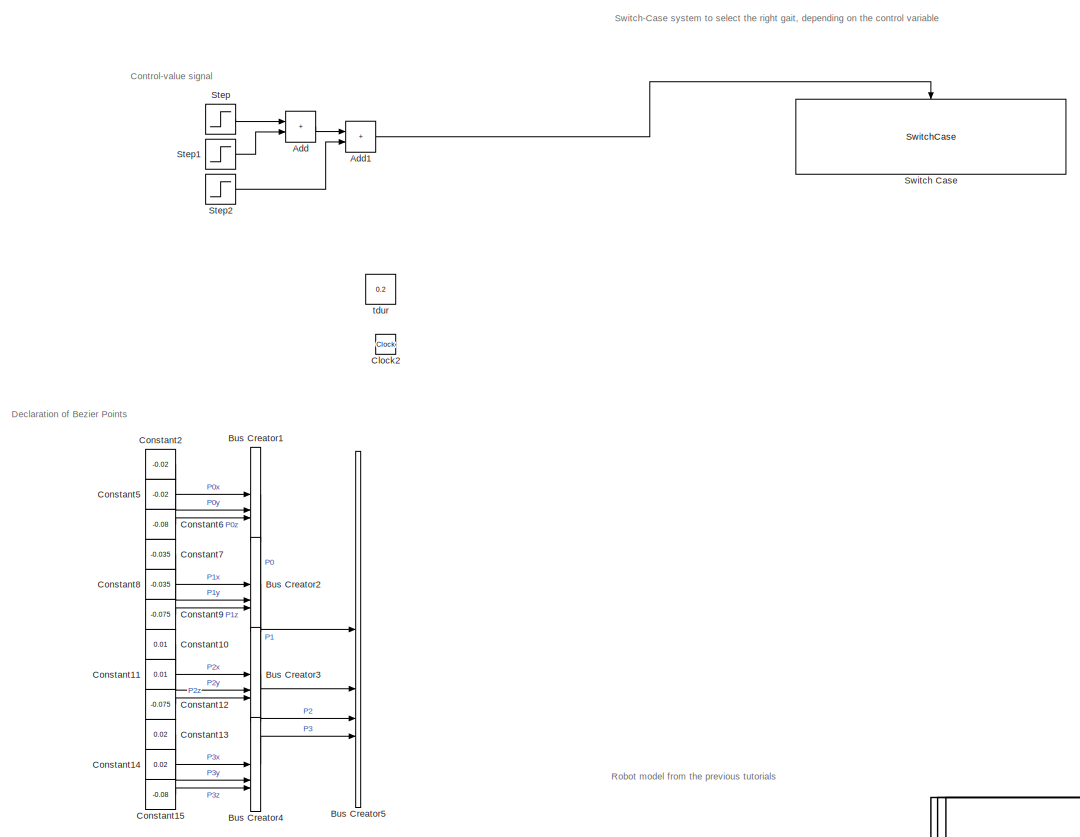
[diagram: root canvas - part 1/3, top left region]
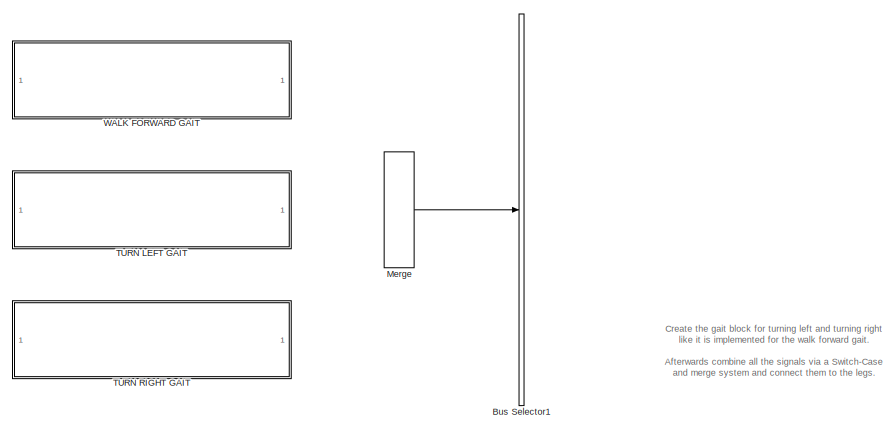
[diagram: root canvas - part 2/3, top right region]
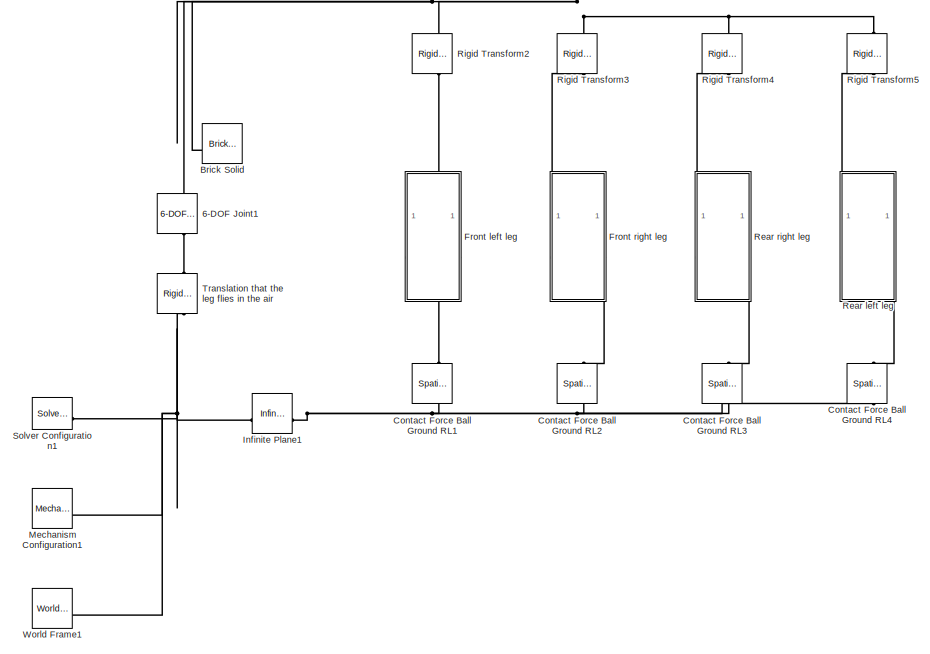
[diagram: root canvas - part 3/3, bottom center region]
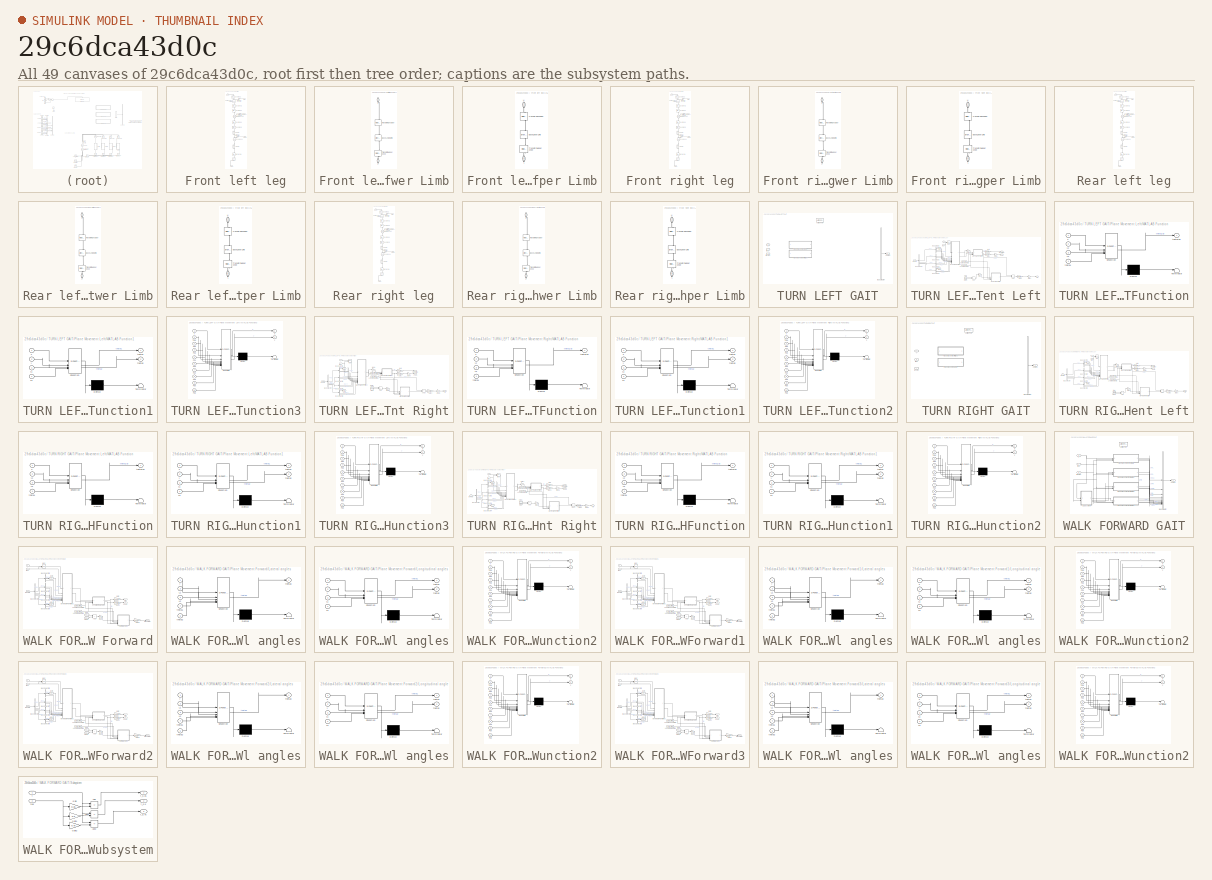
[diagram: thumbnail index - all 49 canvases of the model, root first then tree order]
MODEL slx_29c6dca43d0c
KIND model
CONFIG AbsTol = 1e-3
CONFIG EnableMultiTasking = on
CONFIG FixedStep = auto
CONFIG MaxStep = auto
CONFIG MinStep = auto
CONFIG RelTol = 1e-3
CONFIG SampleTimeConstraint = Unconstrained
CONFIG SolverName = ode23t
CONFIG StartTime = 0.0
CONFIG StopTime = 4
WORKSPACE source: mxarray member
WORKSPACE A = 0.4
WORKSPACE Critical_Velocity = 0.01
WORKSPACE Damping_Factor = 1000
WORKSPACE Dynamic_Friction = 0.5
WORKSPACE Heigth_brick: Simulink.Parameter (value not decoded)
WORKSPACE Heigth_ramp: Simulink.Parameter (value not decoded)
WORKSPACE Length_brick: Simulink.Parameter (value not decoded)
WORKSPACE Length_ramp: Simulink.Parameter (value not decoded)
WORKSPACE Length_torso: Simulink.Parameter (value not decoded)
WORKSPACE Lower_limbs: Simulink.Parameter (value not decoded)
WORKSPACE Static_Friction = 0.7
WORKSPACE Stiffnesscoefficient = 10000
WORKSPACE Transition_Region_Width = 0.02
WORKSPACE Upper_limbs: Simulink.Parameter (value not decoded)
WORKSPACE Width_brick: Simulink.Parameter (value not decoded)
WORKSPACE Width_ramp: Simulink.Parameter (value not decoded)
WORKSPACE Width_torso: Simulink.Parameter (value not decoded)
WORKSPACE f = 1.5
WORKSPACE max_Joint_change = 100
WORKSPACE r_foot: Simulink.Parameter (value not decoded)
WORKSPACE sampleTime: Simulink.Parameter (value not decoded)
WORKSPACE t_leg: Simulink.Parameter (value not decoded)
WORKSPACE theta: Simulink.Parameter (value not decoded)
WORKSPACE transferFunVal: Simulink.Parameter (value not decoded)
BLOCK [Reference] 6-DOF Joint1  REF=sm_lib/Joints/6-DOF Joint
  NameLocation = right
  SourceBlock = sm_lib/Joints/6-DOF Joint
  SourceType = 6-DOF Joint
BLOCK [Sum] Add
  IconShape = rectangular
BLOCK [Sum] Add1
  IconShape = rectangular
BLOCK [Reference] Brick Solid  REF=sm_lib/Body Elements/Brick Solid
  NameLocation = top
  SourceBlock = sm_lib/Body Elements/Brick Solid
  SourceType = Brick Solid
BLOCK [BusCreator] Bus Creator1
  DisplayOption = bar
  InheritFromInputs = on
  Inputs = 3
BLOCK [BusCreator] Bus Creator2
  DisplayOption = bar
  InheritFromInputs = on
  Inputs = 3
BLOCK [BusCreator] Bus Creator3
  DisplayOption = bar
  InheritFromInputs = on
  Inputs = 3
BLOCK [BusCreator] Bus Creator4
  DisplayOption = bar
  InheritFromInputs = on
  Inputs = 3
BLOCK [BusCreator] Bus Creator5
  DisplayOption = bar
  InheritFromInputs = on
  Inputs = 4
BLOCK [BusSelector] Bus Selector1
  OutputSignals = sFL,kFL,sFLs,sFR,kFR,sFRs,sBL,kBL,sBLs,sBR,kBR,sBRs
BLOCK [Clock] Clock2
BLOCK [Constant] Constant10
  Value = 0.01
BLOCK [Constant] Constant11
  Value = 0.01
BLOCK [Constant] Constant12
  Value = -0.075
BLOCK [Constant] Constant13
  Value = 0.02
BLOCK [Constant] Constant14
  Value = 0.02
BLOCK [Constant] Constant15
  Value = -0.08
BLOCK [Constant] Constant2
  Value = -0.02
BLOCK [Constant] Constant5
  Value = -0.02
BLOCK [Constant] Constant6
  Value = -0.08
BLOCK [Constant] Constant7
  Value = -0.035
BLOCK [Constant] Constant8
  Value = -0.035
BLOCK [Constant] Constant9
  Value = -0.075
BLOCK [Reference] Contact Force Ball Ground RL1  REF=sm_lib/Forces and
Torques/Spatial
Contact Force
  NameLocation = left
  SourceBlock = sm_lib/Forces and\nTorques/Spatial\nContact Force
  SourceType = Spatial\nContact Force
BLOCK [Reference] Contact Force Ball Ground RL2  REF=sm_lib/Forces and
Torques/Spatial
Contact Force
  NameLocation = left
  SourceBlock = sm_lib/Forces and\nTorques/Spatial\nContact Force
  SourceType = Spatial\nContact Force
BLOCK [Reference] Contact Force Ball Ground RL3  REF=sm_lib/Forces and
Torques/Spatial
Contact Force
  NameLocation = left
  SourceBlock = sm_lib/Forces and\nTorques/Spatial\nContact Force
  SourceType = Spatial\nContact Force
BLOCK [Reference] Contact Force Ball Ground RL4  REF=sm_lib/Forces and
Torques/Spatial
Contact Force
  NameLocation = left
  SourceBlock = sm_lib/Forces and\nTorques/Spatial\nContact Force
  SourceType = Spatial\nContact Force
BLOCK [SubSystem] Front left leg
  PortSchema = {"entries":[{"content":{"sides":[{"content":{},"type":"ConnectorPlacement.EquallySpacedRectSide","uuid":"4058ee2b-9772-4aa9-ad2c-dc188ae6aecd"},{"content":{"connectorIds":["In1","In2","In3"],"side":"RIGHT"},"type":"ConnectorPlacement.EquallySpacedRectSide","uuid":"c8f5ac60-63ea-4dfe-ad35-3ef8c1bdb1d6"},{"content":{"connectorIds":["LConn1"],"side":"TOP"},"type":"ConnectorPlacement.EquallySpacedRect...<+389ch>  <repeated x4 — deduplicated; at blocks: Front left leg, Front right leg, Rear left leg, Rear right leg>
BLOCK [Inport] Front left leg/<Hip>
  NameLocation = top
BLOCK [Inport] Front left leg/<Knee>
  NameLocation = top
  Port = 3
BLOCK [PMIOPort] Front left leg/Conn1
  Side = Left
BLOCK [PMIOPort] Front left leg/Conn2
  Port = 2
  Side = Right
BLOCK [Reference] Front left leg/Foot  REF=sm_lib/Body Elements/Spherical Solid
  NameLocation = right
  SourceBlock = sm_lib/Body Elements/Spherical Solid
  SourceType = Spherical Solid
BLOCK [SubSystem] Front left leg/Lower Limb
  NameLocation = left
BLOCK [Reference] Front left leg/Lower Limb/BaseLowerLimb  REF=sm_lib/Body Elements/Brick Solid
  NameLocation = left
  SourceBlock = sm_lib/Body Elements/Brick Solid
  SourceType = Brick Solid
BLOCK [PMIOPort] Front left leg/Lower Limb/L
  NameLocation = left
  Port = 2
  Side = Right
BLOCK [Reference] Front left leg/Lower Limb/Transform Shoulder  REF=sm_lib/Frames and
Transforms/Rigid
Transform
  NameLocation = left
  SourceBlock = sm_lib/Frames and\nTransforms/Rigid\nTransform
  SourceType = Rigid\nTransform
BLOCK [Reference] Front left leg/Lower Limb/Transform Upper Knee  REF=sm_lib/Frames and
Transforms/Rigid
Transform
  NameLocation = left
  SourceBlock = sm_lib/Frames and\nTransforms/Rigid\nTransform
  SourceType = Rigid\nTransform
BLOCK [PMIOPort] Front left leg/Lower Limb/U
  NameLocation = left
  Side = Left
BLOCK [Reference] Front left leg/Revolute Knee1  REF=sm_lib/Joints/Revolute Joint
  NameLocation = left
  SourceBlock = sm_lib/Joints/Revolute Joint
  SourceType = Revolute Joint
BLOCK [Reference] Front left leg/Revolute Shoulder Forward  REF=sm_lib/Joints/Revolute Joint
  NameLocation = left
  SourceBlock = sm_lib/Joints/Revolute Joint
  SourceType = Revolute Joint
BLOCK [Reference] Front left leg/Revolute Shoulder Sideways  REF=sm_lib/Joints/Revolute Joint
  NameLocation = left
  SourceBlock = sm_lib/Joints/Revolute Joint
  SourceType = Revolute Joint
BLOCK [Reference] Front left leg/Rigid Transform4  REF=sm_lib/Frames and
Transforms/Rigid
Transform
  NameLocation = left
  SourceBlock = sm_lib/Frames and\nTransforms/Rigid\nTransform
  SourceType = Rigid\nTransform
BLOCK [Inport] Front left leg/Sideways
  NameLocation = top
  Port = 2
BLOCK [Reference] Front left leg/Simulink-PS Converter  REF=nesl_utility/Simulink-PS
Converter
  NameLocation = top
  SourceBlock = nesl_utility/Simulink-PS\nConverter
  SourceType = Simulink-PS\nConverter
BLOCK [Reference] Front left leg/Simulink-PS Converter1  REF=nesl_utility/Simulink-PS
Converter
  NameLocation = top
  SourceBlock = nesl_utility/Simulink-PS\nConverter
  SourceType = Simulink-PS\nConverter
BLOCK [Reference] Front left leg/Simulink-PS Converter2  REF=nesl_utility/Simulink-PS
Converter
  NameLocation = top
  SourceBlock = nesl_utility/Simulink-PS\nConverter
  SourceType = Simulink-PS\nConverter
BLOCK [Reference] Front left leg/Transform Pivot1  REF=sm_lib/Frames and
Transforms/Rigid
Transform
  NameLocation = left
  SourceBlock = sm_lib/Frames and\nTransforms/Rigid\nTransform
  SourceType = Rigid\nTransform
BLOCK [Reference] Front left leg/Transform Pivot2  REF=sm_lib/Frames and
Transforms/Rigid
Transform
  NameLocation = left
  SourceBlock = sm_lib/Frames and\nTransforms/Rigid\nTransform
  SourceType = Rigid\nTransform
BLOCK [Reference] Front left leg/Transform Pivot3  REF=sm_lib/Frames and
Transforms/Rigid
Transform
  NameLocation = left
  SourceBlock = sm_lib/Frames and\nTransforms/Rigid\nTransform
  SourceType = Rigid\nTransform
BLOCK [Reference] Front left leg/Transform Pivot4  REF=sm_lib/Frames and
Transforms/Rigid
Transform
  NameLocation = left
  SourceBlock = sm_lib/Frames and\nTransforms/Rigid\nTransform
  SourceType = Rigid\nTransform
BLOCK [Reference] Front left leg/Transform Pivot5  REF=sm_lib/Frames and
Transforms/Rigid
Transform
  NameLocation = left
  SourceBlock = sm_lib/Frames and\nTransforms/Rigid\nTransform
  SourceType = Rigid\nTransform
BLOCK [SubSystem] Front left leg/Upper Limb
  NameLocation = left
BLOCK [Reference] Front left leg/Upper Limb/BaseUpperLimb  REF=sm_lib/Body Elements/Brick Solid
  NameLocation = left
  SourceBlock = sm_lib/Body Elements/Brick Solid
  SourceType = Brick Solid
BLOCK [PMIOPort] Front left leg/Upper Limb/L
  NameLocation = left
  Port = 2
  Side = Right
BLOCK [Reference] Front left leg/Upper Limb/Transform Shoulder  REF=sm_lib/Frames and
Transforms/Rigid
Transform
  NameLocation = left
  SourceBlock = sm_lib/Frames and\nTransforms/Rigid\nTransform
  SourceType = Rigid\nTransform
BLOCK [Reference] Front left leg/Upper Limb/Transform Upper Knee  REF=sm_lib/Frames and
Transforms/Rigid
Transform
  NameLocation = left
  SourceBlock = sm_lib/Frames and\nTransforms/Rigid\nTransform
  SourceType = Rigid\nTransform
BLOCK [PMIOPort] Front left leg/Upper Limb/U
  NameLocation = left
  Side = Left
BLOCK [SubSystem] Front right leg
BLOCK [Inport] Front right leg/<Hip>
  NameLocation = top
BLOCK [Inport] Front right leg/<Knee>
  NameLocation = top
  Port = 3
BLOCK [PMIOPort] Front right leg/Conn1
  Side = Left
BLOCK [PMIOPort] Front right leg/Conn2
  Port = 2
  Side = Right
BLOCK [Reference] Front right leg/Foot  REF=sm_lib/Body Elements/Spherical Solid
  NameLocation = right
  SourceBlock = sm_lib/Body Elements/Spherical Solid
  SourceType = Spherical Solid
BLOCK [SubSystem] Front right leg/Lower Limb
  NameLocation = left
BLOCK [Reference] Front right leg/Lower Limb/BaseLowerLimb  REF=sm_lib/Body Elements/Brick Solid
  NameLocation = left
  SourceBlock = sm_lib/Body Elements/Brick Solid
  SourceType = Brick Solid
BLOCK [PMIOPort] Front right leg/Lower Limb/L
  NameLocation = left
  Port = 2
  Side = Right
BLOCK [Reference] Front right leg/Lower Limb/Transform Shoulder  REF=sm_lib/Frames and
Transforms/Rigid
Transform
  NameLocation = left
  SourceBlock = sm_lib/Frames and\nTransforms/Rigid\nTransform
  SourceType = Rigid\nTransform
BLOCK [Reference] Front right leg/Lower Limb/Transform Upper Knee  REF=sm_lib/Frames and
Transforms/Rigid
Transform
  NameLocation = left
  SourceBlock = sm_lib/Frames and\nTransforms/Rigid\nTransform
  SourceType = Rigid\nTransform
BLOCK [PMIOPort] Front right leg/Lower Limb/U
  NameLocation = left
  Side = Left
BLOCK [Reference] Front right leg/Revolute Knee1  REF=sm_lib/Joints/Revolute Joint
  NameLocation = left
  SourceBlock = sm_lib/Joints/Revolute Joint
  SourceType = Revolute Joint
BLOCK [Reference] Front right leg/Revolute Shoulder Forward  REF=sm_lib/Joints/Revolute Joint
  NameLocation = left
  SourceBlock = sm_lib/Joints/Revolute Joint
  SourceType = Revolute Joint
BLOCK [Reference] Front right leg/Revolute Shoulder Sideways  REF=sm_lib/Joints/Revolute Joint
  NameLocation = left
  SourceBlock = sm_lib/Joints/Revolute Joint
  SourceType = Revolute Joint
BLOCK [Reference] Front right leg/Rigid Transform4  REF=sm_lib/Frames and
Transforms/Rigid
Transform
  NameLocation = left
  SourceBlock = sm_lib/Frames and\nTransforms/Rigid\nTransform
  SourceType = Rigid\nTransform
BLOCK [Inport] Front right leg/Sideways
  NameLocation = top
  Port = 2
BLOCK [Reference] Front right leg/Simulink-PS Converter  REF=nesl_utility/Simulink-PS
Converter
  NameLocation = top
  SourceBlock = nesl_utility/Simulink-PS\nConverter
  SourceType = Simulink-PS\nConverter
BLOCK [Reference] Front right leg/Simulink-PS Converter1  REF=nesl_utility/Simulink-PS
Converter
  NameLocation = top
  SourceBlock = nesl_utility/Simulink-PS\nConverter
  SourceType = Simulink-PS\nConverter
BLOCK [Reference] Front right leg/Simulink-PS Converter2  REF=nesl_utility/Simulink-PS
Converter
  NameLocation = top
  SourceBlock = nesl_utility/Simulink-PS\nConverter
  SourceType = Simulink-PS\nConverter
BLOCK [Reference] Front right leg/Transform Pivot1  REF=sm_lib/Frames and
Transforms/Rigid
Transform
  NameLocation = left
  SourceBlock = sm_lib/Frames and\nTransforms/Rigid\nTransform
  SourceType = Rigid\nTransform
BLOCK [Reference] Front right leg/Transform Pivot2  REF=sm_lib/Frames and
Transforms/Rigid
Transform
  NameLocation = left
  SourceBlock = sm_lib/Frames and\nTransforms/Rigid\nTransform
  SourceType = Rigid\nTransform
BLOCK [Reference] Front right leg/Transform Pivot3  REF=sm_lib/Frames and
Transforms/Rigid
Transform
  NameLocation = left
  SourceBlock = sm_lib/Frames and\nTransforms/Rigid\nTransform
  SourceType = Rigid\nTransform
BLOCK [Reference] Front right leg/Transform Pivot4  REF=sm_lib/Frames and
Transforms/Rigid
Transform
  NameLocation = left
  SourceBlock = sm_lib/Frames and\nTransforms/Rigid\nTransform
  SourceType = Rigid\nTransform
BLOCK [Reference] Front right leg/Transform Pivot5  REF=sm_lib/Frames and
Transforms/Rigid
Transform
  NameLocation = left
  SourceBlock = sm_lib/Frames and\nTransforms/Rigid\nTransform
  SourceType = Rigid\nTransform
BLOCK [SubSystem] Front right leg/Upper Limb
  NameLocation = left
BLOCK [Reference] Front right leg/Upper Limb/BaseUpperLimb  REF=sm_lib/Body Elements/Brick Solid
  NameLocation = left
  SourceBlock = sm_lib/Body Elements/Brick Solid
  SourceType = Brick Solid
BLOCK [PMIOPort] Front right leg/Upper Limb/L
  NameLocation = left
  Port = 2
  Side = Right
BLOCK [Reference] Front right leg/Upper Limb/Transform Shoulder  REF=sm_lib/Frames and
Transforms/Rigid
Transform
  NameLocation = left
  SourceBlock = sm_lib/Frames and\nTransforms/Rigid\nTransform
  SourceType = Rigid\nTransform
BLOCK [Reference] Front right leg/Upper Limb/Transform Upper Knee  REF=sm_lib/Frames and
Transforms/Rigid
Transform
  NameLocation = left
  SourceBlock = sm_lib/Frames and\nTransforms/Rigid\nTransform
  SourceType = Rigid\nTransform
BLOCK [PMIOPort] Front right leg/Upper Limb/U
  NameLocation = left
  Side = Left
BLOCK [Reference] Infinite Plane1  REF=sm_lib/Curves and Surfaces/Infinite Plane
  SourceBlock = sm_lib/Curves and Surfaces/Infinite Plane
  SourceType = Infinite Plane
BLOCK [Reference] Mechanism Configuration1  REF=sm_lib/Utilities/Mechanism
Configuration
  SourceBlock = sm_lib/Utilities/Mechanism\nConfiguration
  SourceType = Mechanism\nConfiguration
BLOCK [Merge] Merge
  Inputs = 3
BLOCK [SubSystem] Rear left leg
BLOCK [Inport] Rear left leg/<Hip>
  NameLocation = top
BLOCK [Inport] Rear left leg/<Knee>
  NameLocation = top
  Port = 3
BLOCK [PMIOPort] Rear left leg/Conn1
  Side = Left
BLOCK [PMIOPort] Rear left leg/Conn2
  Port = 2
  Side = Right
BLOCK [Reference] Rear left leg/Foot  REF=sm_lib/Body Elements/Spherical Solid
  NameLocation = right
  SourceBlock = sm_lib/Body Elements/Spherical Solid
  SourceType = Spherical Solid
BLOCK [SubSystem] Rear left leg/Lower Limb
  NameLocation = left
BLOCK [Reference] Rear left leg/Lower Limb/BaseLowerLimb  REF=sm_lib/Body Elements/Brick Solid
  NameLocation = left
  SourceBlock = sm_lib/Body Elements/Brick Solid
  SourceType = Brick Solid
BLOCK [PMIOPort] Rear left leg/Lower Limb/L
  NameLocation = left
  Port = 2
  Side = Right
BLOCK [Reference] Rear left leg/Lower Limb/Transform Shoulder  REF=sm_lib/Frames and
Transforms/Rigid
Transform
  NameLocation = left
  SourceBlock = sm_lib/Frames and\nTransforms/Rigid\nTransform
  SourceType = Rigid\nTransform
BLOCK [Reference] Rear left leg/Lower Limb/Transform Upper Knee  REF=sm_lib/Frames and
Transforms/Rigid
Transform
  NameLocation = left
  SourceBlock = sm_lib/Frames and\nTransforms/Rigid\nTransform
  SourceType = Rigid\nTransform
BLOCK [PMIOPort] Rear left leg/Lower Limb/U
  NameLocation = left
  Side = Left
BLOCK [Reference] Rear left leg/Revolute Knee1  REF=sm_lib/Joints/Revolute Joint
  NameLocation = left
  SourceBlock = sm_lib/Joints/Revolute Joint
  SourceType = Revolute Joint
BLOCK [Reference] Rear left leg/Revolute Shoulder Forward  REF=sm_lib/Joints/Revolute Joint
  NameLocation = left
  SourceBlock = sm_lib/Joints/Revolute Joint
  SourceType = Revolute Joint
BLOCK [Reference] Rear left leg/Revolute Shoulder Sideways  REF=sm_lib/Joints/Revolute Joint
  NameLocation = left
  SourceBlock = sm_lib/Joints/Revolute Joint
  SourceType = Revolute Joint
BLOCK [Reference] Rear left leg/Rigid Transform4  REF=sm_lib/Frames and
Transforms/Rigid
Transform
  NameLocation = left
  SourceBlock = sm_lib/Frames and\nTransforms/Rigid\nTransform
  SourceType = Rigid\nTransform
BLOCK [Inport] Rear left leg/Sideways
  NameLocation = top
  Port = 2
BLOCK [Reference] Rear left leg/Simulink-PS Converter  REF=nesl_utility/Simulink-PS
Converter
  NameLocation = top
  SourceBlock = nesl_utility/Simulink-PS\nConverter
  SourceType = Simulink-PS\nConverter
BLOCK [Reference] Rear left leg/Simulink-PS Converter1  REF=nesl_utility/Simulink-PS
Converter
  NameLocation = top
  SourceBlock = nesl_utility/Simulink-PS\nConverter
  SourceType = Simulink-PS\nConverter
BLOCK [Reference] Rear left leg/Simulink-PS Converter2  REF=nesl_utility/Simulink-PS
Converter
  NameLocation = top
  SourceBlock = nesl_utility/Simulink-PS\nConverter
  SourceType = Simulink-PS\nConverter
BLOCK [Reference] Rear left leg/Transform Pivot1  REF=sm_lib/Frames and
Transforms/Rigid
Transform
  NameLocation = left
  SourceBlock = sm_lib/Frames and\nTransforms/Rigid\nTransform
  SourceType = Rigid\nTransform
BLOCK [Reference] Rear left leg/Transform Pivot2  REF=sm_lib/Frames and
Transforms/Rigid
Transform
  NameLocation = left
  SourceBlock = sm_lib/Frames and\nTransforms/Rigid\nTransform
  SourceType = Rigid\nTransform
BLOCK [Reference] Rear left leg/Transform Pivot3  REF=sm_lib/Frames and
Transforms/Rigid
Transform
  NameLocation = left
  SourceBlock = sm_lib/Frames and\nTransforms/Rigid\nTransform
  SourceType = Rigid\nTransform
BLOCK [Reference] Rear left leg/Transform Pivot4  REF=sm_lib/Frames and
Transforms/Rigid
Transform
  NameLocation = left
  SourceBlock = sm_lib/Frames and\nTransforms/Rigid\nTransform
  SourceType = Rigid\nTransform
BLOCK [Reference] Rear left leg/Transform Pivot5  REF=sm_lib/Frames and
Transforms/Rigid
Transform
  NameLocation = left
  SourceBlock = sm_lib/Frames and\nTransforms/Rigid\nTransform
  SourceType = Rigid\nTransform
BLOCK [SubSystem] Rear left leg/Upper Limb
  NameLocation = left
BLOCK [Reference] Rear left leg/Upper Limb/BaseUpperLimb  REF=sm_lib/Body Elements/Brick Solid
  NameLocation = left
  SourceBlock = sm_lib/Body Elements/Brick Solid
  SourceType = Brick Solid
BLOCK [PMIOPort] Rear left leg/Upper Limb/L
  NameLocation = left
  Port = 2
  Side = Right
BLOCK [Reference] Rear left leg/Upper Limb/Transform Shoulder  REF=sm_lib/Frames and
Transforms/Rigid
Transform
  NameLocation = left
  SourceBlock = sm_lib/Frames and\nTransforms/Rigid\nTransform
  SourceType = Rigid\nTransform
BLOCK [Reference] Rear left leg/Upper Limb/Transform Upper Knee  REF=sm_lib/Frames and
Transforms/Rigid
Transform
  NameLocation = left
  SourceBlock = sm_lib/Frames and\nTransforms/Rigid\nTransform
  SourceType = Rigid\nTransform
BLOCK [PMIOPort] Rear left leg/Upper Limb/U
  NameLocation = left
  Side = Left
BLOCK [SubSystem] Rear right leg
BLOCK [Inport] Rear right leg/<Hip>
  NameLocation = top
BLOCK [Inport] Rear right leg/<Knee>
  NameLocation = top
  Port = 3
BLOCK [PMIOPort] Rear right leg/Conn1
  Side = Left
BLOCK [PMIOPort] Rear right leg/Conn2
  Port = 2
  Side = Right
BLOCK [Reference] Rear right leg/Foot  REF=sm_lib/Body Elements/Spherical Solid
  NameLocation = right
  SourceBlock = sm_lib/Body Elements/Spherical Solid
  SourceType = Spherical Solid
BLOCK [SubSystem] Rear right leg/Lower Limb
  NameLocation = left
BLOCK [Reference] Rear right leg/Lower Limb/BaseLowerLimb  REF=sm_lib/Body Elements/Brick Solid
  NameLocation = left
  SourceBlock = sm_lib/Body Elements/Brick Solid
  SourceType = Brick Solid
BLOCK [PMIOPort] Rear right leg/Lower Limb/L
  NameLocation = left
  Port = 2
  Side = Right
BLOCK [Reference] Rear right leg/Lower Limb/Transform Shoulder  REF=sm_lib/Frames and
Transforms/Rigid
Transform
  NameLocation = left
  SourceBlock = sm_lib/Frames and\nTransforms/Rigid\nTransform
  SourceType = Rigid\nTransform
BLOCK [Reference] Rear right leg/Lower Limb/Transform Upper Knee  REF=sm_lib/Frames and
Transforms/Rigid
Transform
  NameLocation = left
  SourceBlock = sm_lib/Frames and\nTransforms/Rigid\nTransform
  SourceType = Rigid\nTransform
BLOCK [PMIOPort] Rear right leg/Lower Limb/U
  NameLocation = left
  Side = Left
BLOCK [Reference] Rear right leg/Revolute Knee1  REF=sm_lib/Joints/Revolute Joint
  NameLocation = left
  SourceBlock = sm_lib/Joints/Revolute Joint
  SourceType = Revolute Joint
BLOCK [Reference] Rear right leg/Revolute Shoulder Forward  REF=sm_lib/Joints/Revolute Joint
  NameLocation = left
  SourceBlock = sm_lib/Joints/Revolute Joint
  SourceType = Revolute Joint
BLOCK [Reference] Rear right leg/Revolute Shoulder Sideways  REF=sm_lib/Joints/Revolute Joint
  NameLocation = left
  SourceBlock = sm_lib/Joints/Revolute Joint
  SourceType = Revolute Joint
BLOCK [Reference] Rear right leg/Rigid Transform4  REF=sm_lib/Frames and
Transforms/Rigid
Transform
  NameLocation = left
  SourceBlock = sm_lib/Frames and\nTransforms/Rigid\nTransform
  SourceType = Rigid\nTransform
BLOCK [Inport] Rear right leg/Sideways
  NameLocation = top
  Port = 2
BLOCK [Reference] Rear right leg/Simulink-PS Converter  REF=nesl_utility/Simulink-PS
Converter
  NameLocation = top
  SourceBlock = nesl_utility/Simulink-PS\nConverter
  SourceType = Simulink-PS\nConverter
BLOCK [Reference] Rear right leg/Simulink-PS Converter1  REF=nesl_utility/Simulink-PS
Converter
  NameLocation = top
  SourceBlock = nesl_utility/Simulink-PS\nConverter
  SourceType = Simulink-PS\nConverter
BLOCK [Reference] Rear right leg/Simulink-PS Converter2  REF=nesl_utility/Simulink-PS
Converter
  NameLocation = top
  SourceBlock = nesl_utility/Simulink-PS\nConverter
  SourceType = Simulink-PS\nConverter
BLOCK [Reference] Rear right leg/Transform Pivot1  REF=sm_lib/Frames and
Transforms/Rigid
Transform
  NameLocation = left
  SourceBlock = sm_lib/Frames and\nTransforms/Rigid\nTransform
  SourceType = Rigid\nTransform
BLOCK [Reference] Rear right leg/Transform Pivot2  REF=sm_lib/Frames and
Transforms/Rigid
Transform
  NameLocation = left
  SourceBlock = sm_lib/Frames and\nTransforms/Rigid\nTransform
  SourceType = Rigid\nTransform
BLOCK [Reference] Rear right leg/Transform Pivot3  REF=sm_lib/Frames and
Transforms/Rigid
Transform
  NameLocation = left
  SourceBlock = sm_lib/Frames and\nTransforms/Rigid\nTransform
  SourceType = Rigid\nTransform
BLOCK [Reference] Rear right leg/Transform Pivot4  REF=sm_lib/Frames and
Transforms/Rigid
Transform
  NameLocation = left
  SourceBlock = sm_lib/Frames and\nTransforms/Rigid\nTransform
  SourceType = Rigid\nTransform
BLOCK [Reference] Rear right leg/Transform Pivot5  REF=sm_lib/Frames and
Transforms/Rigid
Transform
  NameLocation = left
  SourceBlock = sm_lib/Frames and\nTransforms/Rigid\nTransform
  SourceType = Rigid\nTransform
BLOCK [SubSystem] Rear right leg/Upper Limb
  NameLocation = left
BLOCK [Reference] Rear right leg/Upper Limb/BaseUpperLimb  REF=sm_lib/Body Elements/Brick Solid
  NameLocation = left
  SourceBlock = sm_lib/Body Elements/Brick Solid
  SourceType = Brick Solid
BLOCK [PMIOPort] Rear right leg/Upper Limb/L
  NameLocation = left
  Port = 2
  Side = Right
BLOCK [Reference] Rear right leg/Upper Limb/Transform Shoulder  REF=sm_lib/Frames and
Transforms/Rigid
Transform
  NameLocation = left
  SourceBlock = sm_lib/Frames and\nTransforms/Rigid\nTransform
  SourceType = Rigid\nTransform
BLOCK [Reference] Rear right leg/Upper Limb/Transform Upper Knee  REF=sm_lib/Frames and
Transforms/Rigid
Transform
  NameLocation = left
  SourceBlock = sm_lib/Frames and\nTransforms/Rigid\nTransform
  SourceType = Rigid\nTransform
BLOCK [PMIOPort] Rear right leg/Upper Limb/U
  NameLocation = left
  Side = Left
BLOCK [Reference] Rigid Transform2  REF=sm_lib/Frames and
Transforms/Rigid
Transform
  NameLocation = left
  SourceBlock = sm_lib/Frames and\nTransforms/Rigid\nTransform
  SourceType = Rigid\nTransform
BLOCK [Reference] Rigid Transform3  REF=sm_lib/Frames and
Transforms/Rigid
Transform
  NameLocation = left
  SourceBlock = sm_lib/Frames and\nTransforms/Rigid\nTransform
  SourceType = Rigid\nTransform
BLOCK [Reference] Rigid Transform4  REF=sm_lib/Frames and
Transforms/Rigid
Transform
  NameLocation = left
  SourceBlock = sm_lib/Frames and\nTransforms/Rigid\nTransform
  SourceType = Rigid\nTransform
BLOCK [Reference] Rigid Transform5  REF=sm_lib/Frames and
Transforms/Rigid
Transform
  NameLocation = left
  SourceBlock = sm_lib/Frames and\nTransforms/Rigid\nTransform
  SourceType = Rigid\nTransform
BLOCK [Reference] Solver Configuration1  REF=nesl_utility/Solver
Configuration
  SourceBlock = nesl_utility/Solver\nConfiguration
  SourceType = Solver\nConfiguration
BLOCK [Step] Step
  SampleTime = 0
BLOCK [Step] Step1
  SampleTime = 0
  Time = 2
BLOCK [Step] Step2
  SampleTime = 0
  Time = 3
BLOCK [SwitchCase] Switch Case
  CaseConditions = {1,2,3}
  NameLocation = left
  ShowDefaultCase = off
BLOCK [SubSystem] TURN LEFT GAIT
BLOCK [ActionPort] TURN LEFT GAIT/Action Port
  ActionPortLabel = case [ 2 ]:
BLOCK [Outport] TURN LEFT GAIT/Angles
BLOCK [Inport] TURN LEFT GAIT/BPoint
  Port = 3
BLOCK [BusCreator] TURN LEFT GAIT/Bus Creator
  DisplayOption = bar
  InheritFromInputs = on
  Inputs = 12
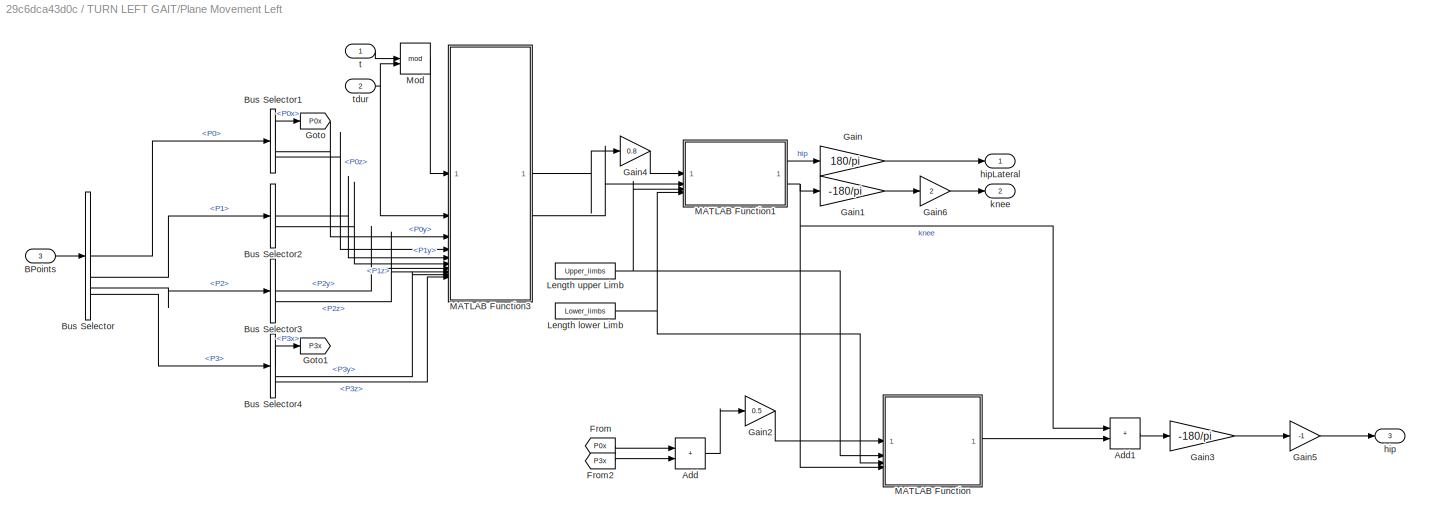
BLOCK [SubSystem] TURN LEFT GAIT/Plane Movement Left
BLOCK [Sum] TURN LEFT GAIT/Plane Movement Left/Add
  IconShape = rectangular
BLOCK [Sum] TURN LEFT GAIT/Plane Movement Left/Add1
  IconShape = rectangular
BLOCK [Inport] TURN LEFT GAIT/Plane Movement Left/BPoints
  Port = 3
BLOCK [BusSelector] TURN LEFT GAIT/Plane Movement Left/Bus Selector
  OutputSignals = P0,P1,P2,P3
BLOCK [BusSelector] TURN LEFT GAIT/Plane Movement Left/Bus Selector1
  OutputSignals = P0x,P0y,P0z
BLOCK [BusSelector] TURN LEFT GAIT/Plane Movement Left/Bus Selector2
  OutputSignals = P1y,P1z
BLOCK [BusSelector] TURN LEFT GAIT/Plane Movement Left/Bus Selector3
  OutputSignals = P2y,P2z
BLOCK [BusSelector] TURN LEFT GAIT/Plane Movement Left/Bus Selector4
  OutputSignals = P3x,P3y,P3z
BLOCK [From] TURN LEFT GAIT/Plane Movement Left/From
  GotoTag = P0x
BLOCK [From] TURN LEFT GAIT/Plane Movement Left/From2
  GotoTag = P3x
BLOCK [Gain] TURN LEFT GAIT/Plane Movement Left/Gain
  Gain = 180/pi
BLOCK [Gain] TURN LEFT GAIT/Plane Movement Left/Gain1
  Gain = -180/pi
BLOCK [Gain] TURN LEFT GAIT/Plane Movement Left/Gain2
  Gain = 0.5
BLOCK [Gain] TURN LEFT GAIT/Plane Movement Left/Gain3
  Gain = -180/pi
BLOCK [Gain] TURN LEFT GAIT/Plane Movement Left/Gain4
  Gain = 0.8
BLOCK [Gain] TURN LEFT GAIT/Plane Movement Left/Gain5
  Gain = -1
BLOCK [Gain] TURN LEFT GAIT/Plane Movement Left/Gain6
  Gain = 2
BLOCK [Goto] TURN LEFT GAIT/Plane Movement Left/Goto
  GotoTag = P0x
BLOCK [Goto] TURN LEFT GAIT/Plane Movement Left/Goto1
  GotoTag = P3x
BLOCK [Constant] TURN LEFT GAIT/Plane Movement Left/Length lower Limb
  Value = Lower_limbs
BLOCK [Constant] TURN LEFT GAIT/Plane Movement Left/Length upper Limb
  Value = Upper_limbs
BLOCK [SubSystem] TURN LEFT GAIT/Plane Movement Left/MATLAB Function
  ErrorFcn = Stateflow.Translate.translate
  PermitHierarchicalResolution = ExplicitOnly
  SFBlockType = MATLAB Function
  TreatAsAtomicUnit = on
BLOCK [Demux] TURN LEFT GAIT/Plane Movement Left/MATLAB Function/ Demux 
  Outputs = 1
BLOCK [S-Function] TURN LEFT GAIT/Plane Movement Left/MATLAB Function/ SFunction 
  EnableBusSupport = on
  FunctionName = sf_sfun
  PortCounts = [4 2]
  SFcnIsStateOwnerBlock = off
  SFunctionDeploymentMode = off
  Tag = Stateflow S-Function 37
BLOCK [Terminator] TURN LEFT GAIT/Plane Movement Left/MATLAB Function/ Terminator 
BLOCK [Inport] TURN LEFT GAIT/Plane Movement Left/MATLAB Function/L1
  Port = 2
BLOCK [Inport] TURN LEFT GAIT/Plane Movement Left/MATLAB Function/L2
  Port = 3
BLOCK [Inport] TURN LEFT GAIT/Plane Movement Left/MATLAB Function/theta1
  Port = 4
BLOCK [Outport] TURN LEFT GAIT/Plane Movement Left/MATLAB Function/theta1Ad
BLOCK [Inport] TURN LEFT GAIT/Plane Movement Left/MATLAB Function/x
BLOCK [SubSystem] TURN LEFT GAIT/Plane Movement Left/MATLAB Function1
  ErrorFcn = Stateflow.Translate.translate
  PermitHierarchicalResolution = ExplicitOnly
  SFBlockType = MATLAB Function
  TreatAsAtomicUnit = on
BLOCK [Demux] TURN LEFT GAIT/Plane Movement Left/MATLAB Function1/ Demux 
  Outputs = 1
BLOCK [S-Function] TURN LEFT GAIT/Plane Movement Left/MATLAB Function1/ SFunction 
  EnableBusSupport = on
  FunctionName = sf_sfun
  PortCounts = [4 3]
  SFcnIsStateOwnerBlock = off
  SFunctionDeploymentMode = off
  Tag = Stateflow S-Function 38
BLOCK [Terminator] TURN LEFT GAIT/Plane Movement Left/MATLAB Function1/ Terminator 
BLOCK [Inport] TURN LEFT GAIT/Plane Movement Left/MATLAB Function1/L1
  Port = 3
BLOCK [Inport] TURN LEFT GAIT/Plane Movement Left/MATLAB Function1/L2
  Port = 4
BLOCK [Outport] TURN LEFT GAIT/Plane Movement Left/MATLAB Function1/theta1
BLOCK [Outport] TURN LEFT GAIT/Plane Movement Left/MATLAB Function1/theta2
  Port = 2
BLOCK [Inport] TURN LEFT GAIT/Plane Movement Left/MATLAB Function1/x
BLOCK [Inport] TURN LEFT GAIT/Plane Movement Left/MATLAB Function1/y
  Port = 2
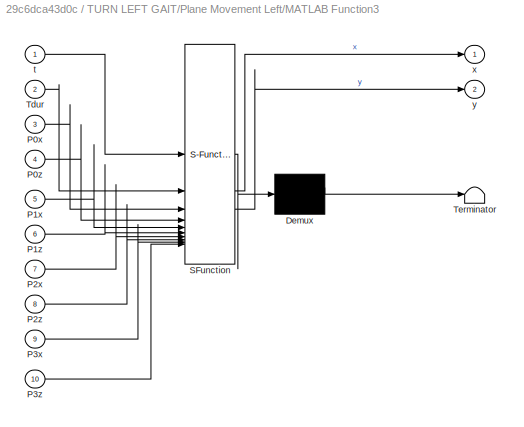
BLOCK [SubSystem] TURN LEFT GAIT/Plane Movement Left/MATLAB Function3
  ErrorFcn = Stateflow.Translate.translate
  PermitHierarchicalResolution = ExplicitOnly
  SFBlockType = MATLAB Function
  TreatAsAtomicUnit = on
BLOCK [Demux] TURN LEFT GAIT/Plane Movement Left/MATLAB Function3/ Demux 
  Outputs = 1
BLOCK [S-Function] TURN LEFT GAIT/Plane Movement Left/MATLAB Function3/ SFunction 
  EnableBusSupport = on
  FunctionName = sf_sfun
  PortCounts = [10 3]
  SFcnIsStateOwnerBlock = off
  SFunctionDeploymentMode = off
  Tag = Stateflow S-Function 39
BLOCK [Terminator] TURN LEFT GAIT/Plane Movement Left/MATLAB Function3/ Terminator 
BLOCK [Inport] TURN LEFT GAIT/Plane Movement Left/MATLAB Function3/P0x
  Port = 3
BLOCK [Inport] TURN LEFT GAIT/Plane Movement Left/MATLAB Function3/P0z
  Port = 4
BLOCK [Inport] TURN LEFT GAIT/Plane Movement Left/MATLAB Function3/P1x
  Port = 5
BLOCK [Inport] TURN LEFT GAIT/Plane Movement Left/MATLAB Function3/P1z
  Port = 6
BLOCK [Inport] TURN LEFT GAIT/Plane Movement Left/MATLAB Function3/P2x
  Port = 7
BLOCK [Inport] TURN LEFT GAIT/Plane Movement Left/MATLAB Function3/P2z
  Port = 8
BLOCK [Inport] TURN LEFT GAIT/Plane Movement Left/MATLAB Function3/P3x
  Port = 9
BLOCK [Inport] TURN LEFT GAIT/Plane Movement Left/MATLAB Function3/P3z
  Port = 10
BLOCK [Inport] TURN LEFT GAIT/Plane Movement Left/MATLAB Function3/Tdur
  Port = 2
BLOCK [Inport] TURN LEFT GAIT/Plane Movement Left/MATLAB Function3/t
BLOCK [Outport] TURN LEFT GAIT/Plane Movement Left/MATLAB Function3/x
BLOCK [Outport] TURN LEFT GAIT/Plane Movement Left/MATLAB Function3/y
  Port = 2
BLOCK [Math] TURN LEFT GAIT/Plane Movement Left/Mod
  Operator = mod
BLOCK [Outport] TURN LEFT GAIT/Plane Movement Left/hip
  Port = 3
BLOCK [Outport] TURN LEFT GAIT/Plane Movement Left/hipLateral
BLOCK [Outport] TURN LEFT GAIT/Plane Movement Left/knee
  Port = 2
BLOCK [Inport] TURN LEFT GAIT/Plane Movement Left/t
BLOCK [Inport] TURN LEFT GAIT/Plane Movement Left/tdur
  Port = 2
BLOCK [SubSystem] TURN LEFT GAIT/Plane Movement Right
BLOCK [Sum] TURN LEFT GAIT/Plane Movement Right/Add
  IconShape = rectangular
BLOCK [Sum] TURN LEFT GAIT/Plane Movement Right/Add1
  IconShape = rectangular
BLOCK [Inport] TURN LEFT GAIT/Plane Movement Right/BPoints
  Port = 3
BLOCK [BusSelector] TURN LEFT GAIT/Plane Movement Right/Bus Selector
  OutputSignals = P0,P1,P2,P3
BLOCK [BusSelector] TURN LEFT GAIT/Plane Movement Right/Bus Selector1
  OutputSignals = P0x,P0y,P0z
BLOCK [BusSelector] TURN LEFT GAIT/Plane Movement Right/Bus Selector2
  OutputSignals = P1y,P1z
BLOCK [BusSelector] TURN LEFT GAIT/Plane Movement Right/Bus Selector3
  OutputSignals = P2y,P2z
BLOCK [BusSelector] TURN LEFT GAIT/Plane Movement Right/Bus Selector4
  OutputSignals = P3x,P3y,P3z
BLOCK [From] TURN LEFT GAIT/Plane Movement Right/From
  GotoTag = P3x
BLOCK [From] TURN LEFT GAIT/Plane Movement Right/From1
  GotoTag = P0x
BLOCK [Gain] TURN LEFT GAIT/Plane Movement Right/Gain
  Gain = 180/pi
BLOCK [Gain] TURN LEFT GAIT/Plane Movement Right/Gain1
  Gain = -180/pi
BLOCK [Gain] TURN LEFT GAIT/Plane Movement Right/Gain2
  Gain = 0.5
BLOCK [Gain] TURN LEFT GAIT/Plane Movement Right/Gain3
  Gain = -180/pi
BLOCK [Gain] TURN LEFT GAIT/Plane Movement Right/Gain4
  Gain = 0.8
BLOCK [Gain] TURN LEFT GAIT/Plane Movement Right/Gain5
  Gain = -1
BLOCK [Gain] TURN LEFT GAIT/Plane Movement Right/Gain6
  Gain = 2
BLOCK [Goto] TURN LEFT GAIT/Plane Movement Right/Goto
  GotoTag = P3x
BLOCK [Goto] TURN LEFT GAIT/Plane Movement Right/Goto1
  GotoTag = P0x
BLOCK [Constant] TURN LEFT GAIT/Plane Movement Right/Length lower Limb
  Value = Lower_limbs
BLOCK [Constant] TURN LEFT GAIT/Plane Movement Right/Length upper Limb
  Value = Upper_limbs
BLOCK [SubSystem] TURN LEFT GAIT/Plane Movement Right/MATLAB Function
  ErrorFcn = Stateflow.Translate.translate
  PermitHierarchicalResolution = ExplicitOnly
  SFBlockType = MATLAB Function
  TreatAsAtomicUnit = on
BLOCK [Demux] TURN LEFT GAIT/Plane Movement Right/MATLAB Function/ Demux 
  Outputs = 1
BLOCK [S-Function] TURN LEFT GAIT/Plane Movement Right/MATLAB Function/ SFunction 
  EnableBusSupport = on
  FunctionName = sf_sfun
  PortCounts = [4 2]
  SFcnIsStateOwnerBlock = off
  SFunctionDeploymentMode = off
  Tag = Stateflow S-Function 40
BLOCK [Terminator] TURN LEFT GAIT/Plane Movement Right/MATLAB Function/ Terminator 
BLOCK [Inport] TURN LEFT GAIT/Plane Movement Right/MATLAB Function/L1
  Port = 2
BLOCK [Inport] TURN LEFT GAIT/Plane Movement Right/MATLAB Function/L2
  Port = 3
BLOCK [Inport] TURN LEFT GAIT/Plane Movement Right/MATLAB Function/theta1
  Port = 4
BLOCK [Outport] TURN LEFT GAIT/Plane Movement Right/MATLAB Function/theta1Ad
BLOCK [Inport] TURN LEFT GAIT/Plane Movement Right/MATLAB Function/x
BLOCK [SubSystem] TURN LEFT GAIT/Plane Movement Right/MATLAB Function1
  ErrorFcn = Stateflow.Translate.translate
  PermitHierarchicalResolution = ExplicitOnly
  SFBlockType = MATLAB Function
  TreatAsAtomicUnit = on
BLOCK [Demux] TURN LEFT GAIT/Plane Movement Right/MATLAB Function1/ Demux 
  Outputs = 1
BLOCK [S-Function] TURN LEFT GAIT/Plane Movement Right/MATLAB Function1/ SFunction 
  EnableBusSupport = on
  FunctionName = sf_sfun
  PortCounts = [4 3]
  SFcnIsStateOwnerBlock = off
  SFunctionDeploymentMode = off
  Tag = Stateflow S-Function 41
BLOCK [Terminator] TURN LEFT GAIT/Plane Movement Right/MATLAB Function1/ Terminator 
BLOCK [Inport] TURN LEFT GAIT/Plane Movement Right/MATLAB Function1/L1
  Port = 3
BLOCK [Inport] TURN LEFT GAIT/Plane Movement Right/MATLAB Function1/L2
  Port = 4
BLOCK [Outport] TURN LEFT GAIT/Plane Movement Right/MATLAB Function1/theta1
BLOCK [Outport] TURN LEFT GAIT/Plane Movement Right/MATLAB Function1/theta2
  Port = 2
BLOCK [Inport] TURN LEFT GAIT/Plane Movement Right/MATLAB Function1/x
BLOCK [Inport] TURN LEFT GAIT/Plane Movement Right/MATLAB Function1/y
  Port = 2
BLOCK [SubSystem] TURN LEFT GAIT/Plane Movement Right/MATLAB Function2
  ErrorFcn = Stateflow.Translate.translate
  PermitHierarchicalResolution = ExplicitOnly
  SFBlockType = MATLAB Function
  TreatAsAtomicUnit = on
BLOCK [Demux] TURN LEFT GAIT/Plane Movement Right/MATLAB Function2/ Demux 
  Outputs = 1
BLOCK [S-Function] TURN LEFT GAIT/Plane Movement Right/MATLAB Function2/ SFunction 
  EnableBusSupport = on
  FunctionName = sf_sfun
  PortCounts = [10 3]
  SFcnIsStateOwnerBlock = off
  SFunctionDeploymentMode = off
  Tag = Stateflow S-Function 42
BLOCK [Terminator] TURN LEFT GAIT/Plane Movement Right/MATLAB Function2/ Terminator 
BLOCK [Inport] TURN LEFT GAIT/Plane Movement Right/MATLAB Function2/P0x
  Port = 3
BLOCK [Inport] TURN LEFT GAIT/Plane Movement Right/MATLAB Function2/P0z
  Port = 4
BLOCK [Inport] TURN LEFT GAIT/Plane Movement Right/MATLAB Function2/P1x
  Port = 5
BLOCK [Inport] TURN LEFT GAIT/Plane Movement Right/MATLAB Function2/P1z
  Port = 6
BLOCK [Inport] TURN LEFT GAIT/Plane Movement Right/MATLAB Function2/P2x
  Port = 7
BLOCK [Inport] TURN LEFT GAIT/Plane Movement Right/MATLAB Function2/P2z
  Port = 8
BLOCK [Inport] TURN LEFT GAIT/Plane Movement Right/MATLAB Function2/P3x
  Port = 9
BLOCK [Inport] TURN LEFT GAIT/Plane Movement Right/MATLAB Function2/P3z
  Port = 10
BLOCK [Inport] TURN LEFT GAIT/Plane Movement Right/MATLAB Function2/Tdur
  Port = 2
BLOCK [Inport] TURN LEFT GAIT/Plane Movement Right/MATLAB Function2/t
BLOCK [Outport] TURN LEFT GAIT/Plane Movement Right/MATLAB Function2/x
BLOCK [Outport] TURN LEFT GAIT/Plane Movement Right/MATLAB Function2/y
  Port = 2
BLOCK [Math] TURN LEFT GAIT/Plane Movement Right/Mod
  Operator = mod
BLOCK [Outport] TURN LEFT GAIT/Plane Movement Right/hip
  Port = 3
BLOCK [Outport] TURN LEFT GAIT/Plane Movement Right/hipLateral
BLOCK [Outport] TURN LEFT GAIT/Plane Movement Right/knee
  Port = 2
BLOCK [Inport] TURN LEFT GAIT/Plane Movement Right/t
BLOCK [Inport] TURN LEFT GAIT/Plane Movement Right/tdur
  Port = 2
BLOCK [Inport] TURN LEFT GAIT/t
BLOCK [Inport] TURN LEFT GAIT/tdur
  Port = 2
BLOCK [SubSystem] TURN RIGHT GAIT
BLOCK [ActionPort] TURN RIGHT GAIT/Action Port
  ActionPortLabel = case [ 3 ]:
BLOCK [Outport] TURN RIGHT GAIT/Angles
BLOCK [Inport] TURN RIGHT GAIT/BPoint
  Port = 3
BLOCK [BusCreator] TURN RIGHT GAIT/Bus Creator
  DisplayOption = bar
  InheritFromInputs = on
  Inputs = 12
BLOCK [SubSystem] TURN RIGHT GAIT/Plane Movement Left
BLOCK [Sum] TURN RIGHT GAIT/Plane Movement Left/Add
  IconShape = rectangular
BLOCK [Sum] TURN RIGHT GAIT/Plane Movement Left/Add1
  IconShape = rectangular
BLOCK [Inport] TURN RIGHT GAIT/Plane Movement Left/BPoints
  Port = 3
BLOCK [BusSelector] TURN RIGHT GAIT/Plane Movement Left/Bus Selector
  OutputSignals = P0,P1,P2,P3
BLOCK [BusSelector] TURN RIGHT GAIT/Plane Movement Left/Bus Selector1
  OutputSignals = P0x,P0y,P0z
BLOCK [BusSelector] TURN RIGHT GAIT/Plane Movement Left/Bus Selector2
  OutputSignals = P1y,P1z
BLOCK [BusSelector] TURN RIGHT GAIT/Plane Movement Left/Bus Selector3
  OutputSignals = P2y,P2z
BLOCK [BusSelector] TURN RIGHT GAIT/Plane Movement Left/Bus Selector4
  OutputSignals = P3x,P3y,P3z
BLOCK [From] TURN RIGHT GAIT/Plane Movement Left/From
  GotoTag = P0x
BLOCK [From] TURN RIGHT GAIT/Plane Movement Left/From2
  GotoTag = P3x
BLOCK [Gain] TURN RIGHT GAIT/Plane Movement Left/Gain
  Gain = 180/pi
BLOCK [Gain] TURN RIGHT GAIT/Plane Movement Left/Gain1
  Gain = -180/pi
BLOCK [Gain] TURN RIGHT GAIT/Plane Movement Left/Gain2
  Gain = 0.5
BLOCK [Gain] TURN RIGHT GAIT/Plane Movement Left/Gain3
  Gain = -180/pi
BLOCK [Gain] TURN RIGHT GAIT/Plane Movement Left/Gain4
  Gain = 0.8
BLOCK [Gain] TURN RIGHT GAIT/Plane Movement Left/Gain5
  Gain = 2
BLOCK [Gain] TURN RIGHT GAIT/Plane Movement Left/Gain6
  Gain = -1
BLOCK [Goto] TURN RIGHT GAIT/Plane Movement Left/Goto
  GotoTag = P0x
BLOCK [Goto] TURN RIGHT GAIT/Plane Movement Left/Goto1
  GotoTag = P3x
BLOCK [Constant] TURN RIGHT GAIT/Plane Movement Left/Length lower Limb
  Value = Lower_limbs
BLOCK [Constant] TURN RIGHT GAIT/Plane Movement Left/Length upper Limb
  Value = Upper_limbs
BLOCK [SubSystem] TURN RIGHT GAIT/Plane Movement Left/MATLAB Function
  ErrorFcn = Stateflow.Translate.translate
  PermitHierarchicalResolution = ExplicitOnly
  SFBlockType = MATLAB Function
  TreatAsAtomicUnit = on
BLOCK [Demux] TURN RIGHT GAIT/Plane Movement Left/MATLAB Function/ Demux 
  Outputs = 1
BLOCK [S-Function] TURN RIGHT GAIT/Plane Movement Left/MATLAB Function/ SFunction 
  EnableBusSupport = on
  FunctionName = sf_sfun
  PortCounts = [4 2]
  SFcnIsStateOwnerBlock = off
  SFunctionDeploymentMode = off
  Tag = Stateflow S-Function 43
BLOCK [Terminator] TURN RIGHT GAIT/Plane Movement Left/MATLAB Function/ Terminator 
BLOCK [Inport] TURN RIGHT GAIT/Plane Movement Left/MATLAB Function/L1
  Port = 2
BLOCK [Inport] TURN RIGHT GAIT/Plane Movement Left/MATLAB Function/L2
  Port = 3
BLOCK [Inport] TURN RIGHT GAIT/Plane Movement Left/MATLAB Function/theta1
  Port = 4
BLOCK [Outport] TURN RIGHT GAIT/Plane Movement Left/MATLAB Function/theta1Ad
BLOCK [Inport] TURN RIGHT GAIT/Plane Movement Left/MATLAB Function/x
BLOCK [SubSystem] TURN RIGHT GAIT/Plane Movement Left/MATLAB Function1
  ErrorFcn = Stateflow.Translate.translate
  PermitHierarchicalResolution = ExplicitOnly
  SFBlockType = MATLAB Function
  TreatAsAtomicUnit = on
BLOCK [Demux] TURN RIGHT GAIT/Plane Movement Left/MATLAB Function1/ Demux 
  Outputs = 1
BLOCK [S-Function] TURN RIGHT GAIT/Plane Movement Left/MATLAB Function1/ SFunction 
  EnableBusSupport = on
  FunctionName = sf_sfun
  PortCounts = [4 3]
  SFcnIsStateOwnerBlock = off
  SFunctionDeploymentMode = off
  Tag = Stateflow S-Function 44
BLOCK [Terminator] TURN RIGHT GAIT/Plane Movement Left/MATLAB Function1/ Terminator 
BLOCK [Inport] TURN RIGHT GAIT/Plane Movement Left/MATLAB Function1/L1
  Port = 3
BLOCK [Inport] TURN RIGHT GAIT/Plane Movement Left/MATLAB Function1/L2
  Port = 4
BLOCK [Outport] TURN RIGHT GAIT/Plane Movement Left/MATLAB Function1/theta1
BLOCK [Outport] TURN RIGHT GAIT/Plane Movement Left/MATLAB Function1/theta2
  Port = 2
BLOCK [Inport] TURN RIGHT GAIT/Plane Movement Left/MATLAB Function1/x
BLOCK [Inport] TURN RIGHT GAIT/Plane Movement Left/MATLAB Function1/y
  Port = 2
BLOCK [SubSystem] TURN RIGHT GAIT/Plane Movement Left/MATLAB Function3
  ErrorFcn = Stateflow.Translate.translate
  PermitHierarchicalResolution = ExplicitOnly
  SFBlockType = MATLAB Function
  TreatAsAtomicUnit = on
BLOCK [Demux] TURN RIGHT GAIT/Plane Movement Left/MATLAB Function3/ Demux 
  Outputs = 1
BLOCK [S-Function] TURN RIGHT GAIT/Plane Movement Left/MATLAB Function3/ SFunction 
  EnableBusSupport = on
  FunctionName = sf_sfun
  PortCounts = [10 3]
  SFcnIsStateOwnerBlock = off
  SFunctionDeploymentMode = off
  Tag = Stateflow S-Function 45
BLOCK [Terminator] TURN RIGHT GAIT/Plane Movement Left/MATLAB Function3/ Terminator 
BLOCK [Inport] TURN RIGHT GAIT/Plane Movement Left/MATLAB Function3/P0x
  Port = 3
BLOCK [Inport] TURN RIGHT GAIT/Plane Movement Left/MATLAB Function3/P0z
  Port = 4
BLOCK [Inport] TURN RIGHT GAIT/Plane Movement Left/MATLAB Function3/P1x
  Port = 5
BLOCK [Inport] TURN RIGHT GAIT/Plane Movement Left/MATLAB Function3/P1z
  Port = 6
BLOCK [Inport] TURN RIGHT GAIT/Plane Movement Left/MATLAB Function3/P2x
  Port = 7
BLOCK [Inport] TURN RIGHT GAIT/Plane Movement Left/MATLAB Function3/P2z
  Port = 8
BLOCK [Inport] TURN RIGHT GAIT/Plane Movement Left/MATLAB Function3/P3x
  Port = 9
BLOCK [Inport] TURN RIGHT GAIT/Plane Movement Left/MATLAB Function3/P3z
  Port = 10
BLOCK [Inport] TURN RIGHT GAIT/Plane Movement Left/MATLAB Function3/Tdur
  Port = 2
BLOCK [Inport] TURN RIGHT GAIT/Plane Movement Left/MATLAB Function3/t
BLOCK [Outport] TURN RIGHT GAIT/Plane Movement Left/MATLAB Function3/x
BLOCK [Outport] TURN RIGHT GAIT/Plane Movement Left/MATLAB Function3/y
  Port = 2
BLOCK [Math] TURN RIGHT GAIT/Plane Movement Left/Mod
  Operator = mod
BLOCK [Outport] TURN RIGHT GAIT/Plane Movement Left/hip
  Port = 3
BLOCK [Outport] TURN RIGHT GAIT/Plane Movement Left/hipLateral
BLOCK [Outport] TURN RIGHT GAIT/Plane Movement Left/knee
  Port = 2
BLOCK [Inport] TURN RIGHT GAIT/Plane Movement Left/t
BLOCK [Inport] TURN RIGHT GAIT/Plane Movement Left/tdur
  Port = 2
BLOCK [SubSystem] TURN RIGHT GAIT/Plane Movement Right
BLOCK [Sum] TURN RIGHT GAIT/Plane Movement Right/Add
  IconShape = rectangular
BLOCK [Sum] TURN RIGHT GAIT/Plane Movement Right/Add1
  IconShape = rectangular
BLOCK [Inport] TURN RIGHT GAIT/Plane Movement Right/BPoints
  Port = 3
BLOCK [BusSelector] TURN RIGHT GAIT/Plane Movement Right/Bus Selector
  OutputSignals = P0,P1,P2,P3
BLOCK [BusSelector] TURN RIGHT GAIT/Plane Movement Right/Bus Selector1
  OutputSignals = P0x,P0y,P0z
BLOCK [BusSelector] TURN RIGHT GAIT/Plane Movement Right/Bus Selector2
  OutputSignals = P1y,P1z
BLOCK [BusSelector] TURN RIGHT GAIT/Plane Movement Right/Bus Selector3
  OutputSignals = P2y,P2z
BLOCK [BusSelector] TURN RIGHT GAIT/Plane Movement Right/Bus Selector4
  OutputSignals = P3x,P3y,P3z
BLOCK [From] TURN RIGHT GAIT/Plane Movement Right/From
  GotoTag = P3x
BLOCK [From] TURN RIGHT GAIT/Plane Movement Right/From1
  GotoTag = P0x
BLOCK [Gain] TURN RIGHT GAIT/Plane Movement Right/Gain
  Gain = 180/pi
BLOCK [Gain] TURN RIGHT GAIT/Plane Movement Right/Gain1
  Gain = -180/pi
BLOCK [Gain] TURN RIGHT GAIT/Plane Movement Right/Gain2
  Gain = 0.5
BLOCK [Gain] TURN RIGHT GAIT/Plane Movement Right/Gain3
  Gain = -180/pi
BLOCK [Gain] TURN RIGHT GAIT/Plane Movement Right/Gain4
  Gain = 0.8
BLOCK [Gain] TURN RIGHT GAIT/Plane Movement Right/Gain5
  Gain = 2
BLOCK [Gain] TURN RIGHT GAIT/Plane Movement Right/Gain6
  Gain = -1
BLOCK [Goto] TURN RIGHT GAIT/Plane Movement Right/Goto
  GotoTag = P3x
BLOCK [Goto] TURN RIGHT GAIT/Plane Movement Right/Goto1
  GotoTag = P0x
BLOCK [Constant] TURN RIGHT GAIT/Plane Movement Right/Length lower Limb
  Value = Lower_limbs
BLOCK [Constant] TURN RIGHT GAIT/Plane Movement Right/Length upper Limb
  Value = Upper_limbs
BLOCK [SubSystem] TURN RIGHT GAIT/Plane Movement Right/MATLAB Function
  ErrorFcn = Stateflow.Translate.translate
  PermitHierarchicalResolution = ExplicitOnly
  SFBlockType = MATLAB Function
  TreatAsAtomicUnit = on
BLOCK [Demux] TURN RIGHT GAIT/Plane Movement Right/MATLAB Function/ Demux 
  Outputs = 1
BLOCK [S-Function] TURN RIGHT GAIT/Plane Movement Right/MATLAB Function/ SFunction 
  EnableBusSupport = on
  FunctionName = sf_sfun
  PortCounts = [4 2]
  SFcnIsStateOwnerBlock = off
  SFunctionDeploymentMode = off
  Tag = Stateflow S-Function 46
BLOCK [Terminator] TURN RIGHT GAIT/Plane Movement Right/MATLAB Function/ Terminator 
BLOCK [Inport] TURN RIGHT GAIT/Plane Movement Right/MATLAB Function/L1
  Port = 2
BLOCK [Inport] TURN RIGHT GAIT/Plane Movement Right/MATLAB Function/L2
  Port = 3
BLOCK [Inport] TURN RIGHT GAIT/Plane Movement Right/MATLAB Function/theta1
  Port = 4
BLOCK [Outport] TURN RIGHT GAIT/Plane Movement Right/MATLAB Function/theta1Ad
BLOCK [Inport] TURN RIGHT GAIT/Plane Movement Right/MATLAB Function/x
BLOCK [SubSystem] TURN RIGHT GAIT/Plane Movement Right/MATLAB Function1
  ErrorFcn = Stateflow.Translate.translate
  PermitHierarchicalResolution = ExplicitOnly
  SFBlockType = MATLAB Function
  TreatAsAtomicUnit = on
BLOCK [Demux] TURN RIGHT GAIT/Plane Movement Right/MATLAB Function1/ Demux 
  Outputs = 1
BLOCK [S-Function] TURN RIGHT GAIT/Plane Movement Right/MATLAB Function1/ SFunction 
  EnableBusSupport = on
  FunctionName = sf_sfun
  PortCounts = [4 3]
  SFcnIsStateOwnerBlock = off
  SFunctionDeploymentMode = off
  Tag = Stateflow S-Function 47
BLOCK [Terminator] TURN RIGHT GAIT/Plane Movement Right/MATLAB Function1/ Terminator 
BLOCK [Inport] TURN RIGHT GAIT/Plane Movement Right/MATLAB Function1/L1
  Port = 3
BLOCK [Inport] TURN RIGHT GAIT/Plane Movement Right/MATLAB Function1/L2
  Port = 4
BLOCK [Outport] TURN RIGHT GAIT/Plane Movement Right/MATLAB Function1/theta1
BLOCK [Outport] TURN RIGHT GAIT/Plane Movement Right/MATLAB Function1/theta2
  Port = 2
BLOCK [Inport] TURN RIGHT GAIT/Plane Movement Right/MATLAB Function1/x
BLOCK [Inport] TURN RIGHT GAIT/Plane Movement Right/MATLAB Function1/y
  Port = 2
BLOCK [SubSystem] TURN RIGHT GAIT/Plane Movement Right/MATLAB Function2
  ErrorFcn = Stateflow.Translate.translate
  PermitHierarchicalResolution = ExplicitOnly
  SFBlockType = MATLAB Function
  TreatAsAtomicUnit = on
BLOCK [Demux] TURN RIGHT GAIT/Plane Movement Right/MATLAB Function2/ Demux 
  Outputs = 1
BLOCK [S-Function] TURN RIGHT GAIT/Plane Movement Right/MATLAB Function2/ SFunction 
  EnableBusSupport = on
  FunctionName = sf_sfun
  PortCounts = [10 3]
  SFcnIsStateOwnerBlock = off
  SFunctionDeploymentMode = off
  Tag = Stateflow S-Function 48
BLOCK [Terminator] TURN RIGHT GAIT/Plane Movement Right/MATLAB Function2/ Terminator 
BLOCK [Inport] TURN RIGHT GAIT/Plane Movement Right/MATLAB Function2/P0x
  Port = 3
BLOCK [Inport] TURN RIGHT GAIT/Plane Movement Right/MATLAB Function2/P0z
  Port = 4
BLOCK [Inport] TURN RIGHT GAIT/Plane Movement Right/MATLAB Function2/P1x
  Port = 5
BLOCK [Inport] TURN RIGHT GAIT/Plane Movement Right/MATLAB Function2/P1z
  Port = 6
BLOCK [Inport] TURN RIGHT GAIT/Plane Movement Right/MATLAB Function2/P2x
  Port = 7
BLOCK [Inport] TURN RIGHT GAIT/Plane Movement Right/MATLAB Function2/P2z
  Port = 8
BLOCK [Inport] TURN RIGHT GAIT/Plane Movement Right/MATLAB Function2/P3x
  Port = 9
BLOCK [Inport] TURN RIGHT GAIT/Plane Movement Right/MATLAB Function2/P3z
  Port = 10
BLOCK [Inport] TURN RIGHT GAIT/Plane Movement Right/MATLAB Function2/Tdur
  Port = 2
BLOCK [Inport] TURN RIGHT GAIT/Plane Movement Right/MATLAB Function2/t
BLOCK [Outport] TURN RIGHT GAIT/Plane Movement Right/MATLAB Function2/x
BLOCK [Outport] TURN RIGHT GAIT/Plane Movement Right/MATLAB Function2/y
  Port = 2
BLOCK [Math] TURN RIGHT GAIT/Plane Movement Right/Mod
  Operator = mod
BLOCK [Outport] TURN RIGHT GAIT/Plane Movement Right/hip
  Port = 3
BLOCK [Outport] TURN RIGHT GAIT/Plane Movement Right/hipLateral
BLOCK [Outport] TURN RIGHT GAIT/Plane Movement Right/knee
  Port = 2
BLOCK [Inport] TURN RIGHT GAIT/Plane Movement Right/t
BLOCK [Inport] TURN RIGHT GAIT/Plane Movement Right/tdur
  Port = 2
BLOCK [Inport] TURN RIGHT GAIT/t
BLOCK [Inport] TURN RIGHT GAIT/tdur
  Port = 2
BLOCK [Reference] Translation that the leg flies in the air  REF=sm_lib/Frames and
Transforms/Rigid
Transform
  SourceBlock = sm_lib/Frames and\nTransforms/Rigid\nTransform
  SourceType = Rigid\nTransform
BLOCK [SubSystem] WALK FORWARD GAIT
BLOCK [ActionPort] WALK FORWARD GAIT/Action Port
  ActionPortLabel = case [ 1 ]:
BLOCK [Outport] WALK FORWARD GAIT/Angles
BLOCK [Inport] WALK FORWARD GAIT/BPoint
  Port = 3
BLOCK [BusCreator] WALK FORWARD GAIT/Bus Creator
  DisplayOption = bar
  InheritFromInputs = on
  Inputs = 12
BLOCK [SubSystem] WALK FORWARD GAIT/Plane Movement Forward
BLOCK [Sum] WALK FORWARD GAIT/Plane Movement Forward/Add
  IconShape = rectangular
BLOCK [Inport] WALK FORWARD GAIT/Plane Movement Forward/BPoints
  Port = 3
BLOCK [BusSelector] WALK FORWARD GAIT/Plane Movement Forward/Bus Selector5
  OutputSignals = P0,P1,P2,P3
BLOCK [BusSelector] WALK FORWARD GAIT/Plane Movement Forward/Bus Selector6
  OutputSignals = P0x,P0y,P0z
BLOCK [BusSelector] WALK FORWARD GAIT/Plane Movement Forward/Bus Selector7
  OutputSignals = P1x,P1z
BLOCK [BusSelector] WALK FORWARD GAIT/Plane Movement Forward/Bus Selector8
  OutputSignals = P2x,P2z
BLOCK [BusSelector] WALK FORWARD GAIT/Plane Movement Forward/Bus Selector9
  OutputSignals = P3x,P3y,P3z
BLOCK [From] WALK FORWARD GAIT/Plane Movement Forward/From
  GotoTag = P0y
BLOCK [From] WALK FORWARD GAIT/Plane Movement Forward/From1
  GotoTag = P3y
BLOCK [Gain] WALK FORWARD GAIT/Plane Movement Forward/Gain
  Gain = 180/pi
BLOCK [Gain] WALK FORWARD GAIT/Plane Movement Forward/Gain1
  Gain = -180/pi
BLOCK [Gain] WALK FORWARD GAIT/Plane Movement Forward/Gain2
  Gain = 0.5
BLOCK [Gain] WALK FORWARD GAIT/Plane Movement Forward/Gain3
  Gain = 180/pi
BLOCK [Goto] WALK FORWARD GAIT/Plane Movement Forward/Goto
  GotoTag = P0y
BLOCK [Goto] WALK FORWARD GAIT/Plane Movement Forward/Goto1
  GotoTag = P3y
BLOCK [Outport] WALK FORWARD GAIT/Plane Movement Forward/HipLateral
  Port = 3
BLOCK [SubSystem] WALK FORWARD GAIT/Plane Movement Forward/Lateral angles
  ErrorFcn = Stateflow.Translate.translate
  PermitHierarchicalResolution = ExplicitOnly
  SFBlockType = MATLAB Function
  TreatAsAtomicUnit = on
BLOCK [Demux] WALK FORWARD GAIT/Plane Movement Forward/Lateral angles/ Demux 
  Outputs = 1
BLOCK [S-Function] WALK FORWARD GAIT/Plane Movement Forward/Lateral angles/ SFunction 
  EnableBusSupport = on
  FunctionName = sf_sfun
  PortCounts = [5 2]
  SFcnIsStateOwnerBlock = off
  SFunctionDeploymentMode = off
  Tag = Stateflow S-Function 4
BLOCK [Terminator] WALK FORWARD GAIT/Plane Movement Forward/Lateral angles/ Terminator 
BLOCK [Inport] WALK FORWARD GAIT/Plane Movement Forward/Lateral angles/L1
  Port = 2
BLOCK [Inport] WALK FORWARD GAIT/Plane Movement Forward/Lateral angles/L2
  Port = 3
BLOCK [Inport] WALK FORWARD GAIT/Plane Movement Forward/Lateral angles/theta1
  Port = 4
BLOCK [Inport] WALK FORWARD GAIT/Plane Movement Forward/Lateral angles/theta2
  Port = 5
BLOCK [Outport] WALK FORWARD GAIT/Plane Movement Forward/Lateral angles/theta3
BLOCK [Inport] WALK FORWARD GAIT/Plane Movement Forward/Lateral angles/y
BLOCK [Constant] WALK FORWARD GAIT/Plane Movement Forward/Length lower Limb
  Value = Lower_limbs
BLOCK [Constant] WALK FORWARD GAIT/Plane Movement Forward/Length upper Limb
  Value = Upper_limbs
BLOCK [SubSystem] WALK FORWARD GAIT/Plane Movement Forward/Longitudinal angles
  ErrorFcn = Stateflow.Translate.translate
  PermitHierarchicalResolution = ExplicitOnly
  SFBlockType = MATLAB Function
  TreatAsAtomicUnit = on
BLOCK [Demux] WALK FORWARD GAIT/Plane Movement Forward/Longitudinal angles/ Demux 
  Outputs = 1
BLOCK [S-Function] WALK FORWARD GAIT/Plane Movement Forward/Longitudinal angles/ SFunction 
  EnableBusSupport = on
  FunctionName = sf_sfun
  PortCounts = [4 3]
  SFcnIsStateOwnerBlock = off
  SFunctionDeploymentMode = off
  Tag = Stateflow S-Function 5
BLOCK [Terminator] WALK FORWARD GAIT/Plane Movement Forward/Longitudinal angles/ Terminator 
BLOCK [Inport] WALK FORWARD GAIT/Plane Movement Forward/Longitudinal angles/L1
  Port = 3
BLOCK [Inport] WALK FORWARD GAIT/Plane Movement Forward/Longitudinal angles/L2
  Port = 4
BLOCK [Outport] WALK FORWARD GAIT/Plane Movement Forward/Longitudinal angles/theta1
BLOCK [Outport] WALK FORWARD GAIT/Plane Movement Forward/Longitudinal angles/theta2
  Port = 2
BLOCK [Inport] WALK FORWARD GAIT/Plane Movement Forward/Longitudinal angles/x
BLOCK [Inport] WALK FORWARD GAIT/Plane Movement Forward/Longitudinal angles/y
  Port = 2
BLOCK [SubSystem] WALK FORWARD GAIT/Plane Movement Forward/MATLAB Function2
  ErrorFcn = Stateflow.Translate.translate
  PermitHierarchicalResolution = ExplicitOnly
  SFBlockType = MATLAB Function
  TreatAsAtomicUnit = on
BLOCK [Demux] WALK FORWARD GAIT/Plane Movement Forward/MATLAB Function2/ Demux 
  Outputs = 1
BLOCK [S-Function] WALK FORWARD GAIT/Plane Movement Forward/MATLAB Function2/ SFunction 
  EnableBusSupport = on
  FunctionName = sf_sfun
  PortCounts = [10 3]
  SFcnIsStateOwnerBlock = off
  SFunctionDeploymentMode = off
  Tag = Stateflow S-Function 6
BLOCK [Terminator] WALK FORWARD GAIT/Plane Movement Forward/MATLAB Function2/ Terminator 
BLOCK [Inport] WALK FORWARD GAIT/Plane Movement Forward/MATLAB Function2/P0x
  Port = 3
BLOCK [Inport] WALK FORWARD GAIT/Plane Movement Forward/MATLAB Function2/P0z
  Port = 4
BLOCK [Inport] WALK FORWARD GAIT/Plane Movement Forward/MATLAB Function2/P1x
  Port = 5
BLOCK [Inport] WALK FORWARD GAIT/Plane Movement Forward/MATLAB Function2/P1z
  Port = 6
BLOCK [Inport] WALK FORWARD GAIT/Plane Movement Forward/MATLAB Function2/P2x
  Port = 7
BLOCK [Inport] WALK FORWARD GAIT/Plane Movement Forward/MATLAB Function2/P2z
  Port = 8
BLOCK [Inport] WALK FORWARD GAIT/Plane Movement Forward/MATLAB Function2/P3x
  Port = 9
BLOCK [Inport] WALK FORWARD GAIT/Plane Movement Forward/MATLAB Function2/P3z
  Port = 10
BLOCK [Inport] WALK FORWARD GAIT/Plane Movement Forward/MATLAB Function2/Tdur
  Port = 2
BLOCK [Inport] WALK FORWARD GAIT/Plane Movement Forward/MATLAB Function2/t
BLOCK [Outport] WALK FORWARD GAIT/Plane Movement Forward/MATLAB Function2/x
BLOCK [Outport] WALK FORWARD GAIT/Plane Movement Forward/MATLAB Function2/y
  Port = 2
BLOCK [Math] WALK FORWARD GAIT/Plane Movement Forward/Mod
  Operator = mod
BLOCK [Outport] WALK FORWARD GAIT/Plane Movement Forward/hip
BLOCK [Outport] WALK FORWARD GAIT/Plane Movement Forward/knee
  Port = 2
BLOCK [Inport] WALK FORWARD GAIT/Plane Movement Forward/t
BLOCK [Inport] WALK FORWARD GAIT/Plane Movement Forward/tdur
  Port = 2
BLOCK [SubSystem] WALK FORWARD GAIT/Plane Movement Forward1
BLOCK [Sum] WALK FORWARD GAIT/Plane Movement Forward1/Add
  IconShape = rectangular
BLOCK [Inport] WALK FORWARD GAIT/Plane Movement Forward1/BPoints
  Port = 3
BLOCK [BusSelector] WALK FORWARD GAIT/Plane Movement Forward1/Bus Selector5
  OutputSignals = P0,P1,P2,P3
BLOCK [BusSelector] WALK FORWARD GAIT/Plane Movement Forward1/Bus Selector6
  OutputSignals = P0x,P0y,P0z
BLOCK [BusSelector] WALK FORWARD GAIT/Plane Movement Forward1/Bus Selector7
  OutputSignals = P1x,P1z
BLOCK [BusSelector] WALK FORWARD GAIT/Plane Movement Forward1/Bus Selector8
  OutputSignals = P2x,P2z
BLOCK [BusSelector] WALK FORWARD GAIT/Plane Movement Forward1/Bus Selector9
  OutputSignals = P3x,P3y,P3z
BLOCK [From] WALK FORWARD GAIT/Plane Movement Forward1/From
  GotoTag = P0y
BLOCK [From] WALK FORWARD GAIT/Plane Movement Forward1/From1
  GotoTag = P3y
BLOCK [Gain] WALK FORWARD GAIT/Plane Movement Forward1/Gain
  Gain = 180/pi
BLOCK [Gain] WALK FORWARD GAIT/Plane Movement Forward1/Gain1
  Gain = -180/pi
BLOCK [Gain] WALK FORWARD GAIT/Plane Movement Forward1/Gain2
  Gain = 0.5
BLOCK [Gain] WALK FORWARD GAIT/Plane Movement Forward1/Gain3
  Gain = 180/pi
BLOCK [Goto] WALK FORWARD GAIT/Plane Movement Forward1/Goto
  GotoTag = P0y
BLOCK [Goto] WALK FORWARD GAIT/Plane Movement Forward1/Goto1
  GotoTag = P3y
BLOCK [Outport] WALK FORWARD GAIT/Plane Movement Forward1/HipLateral
  Port = 3
BLOCK [SubSystem] WALK FORWARD GAIT/Plane Movement Forward1/Lateral angles
  ErrorFcn = Stateflow.Translate.translate
  PermitHierarchicalResolution = ExplicitOnly
  SFBlockType = MATLAB Function
  TreatAsAtomicUnit = on
BLOCK [Demux] WALK FORWARD GAIT/Plane Movement Forward1/Lateral angles/ Demux 
  Outputs = 1
BLOCK [S-Function] WALK FORWARD GAIT/Plane Movement Forward1/Lateral angles/ SFunction 
  EnableBusSupport = on
  FunctionName = sf_sfun
  PortCounts = [5 2]
  SFcnIsStateOwnerBlock = off
  SFunctionDeploymentMode = off
  Tag = Stateflow S-Function 9
BLOCK [Terminator] WALK FORWARD GAIT/Plane Movement Forward1/Lateral angles/ Terminator 
BLOCK [Inport] WALK FORWARD GAIT/Plane Movement Forward1/Lateral angles/L1
  Port = 2
BLOCK [Inport] WALK FORWARD GAIT/Plane Movement Forward1/Lateral angles/L2
  Port = 3
BLOCK [Inport] WALK FORWARD GAIT/Plane Movement Forward1/Lateral angles/theta1
  Port = 4
BLOCK [Inport] WALK FORWARD GAIT/Plane Movement Forward1/Lateral angles/theta2
  Port = 5
BLOCK [Outport] WALK FORWARD GAIT/Plane Movement Forward1/Lateral angles/theta3
BLOCK [Inport] WALK FORWARD GAIT/Plane Movement Forward1/Lateral angles/y
BLOCK [Constant] WALK FORWARD GAIT/Plane Movement Forward1/Length lower Limb
  Value = Lower_limbs
BLOCK [Constant] WALK FORWARD GAIT/Plane Movement Forward1/Length upper Limb
  Value = Upper_limbs
BLOCK [SubSystem] WALK FORWARD GAIT/Plane Movement Forward1/Longitudinal angles
  ErrorFcn = Stateflow.Translate.translate
  PermitHierarchicalResolution = ExplicitOnly
  SFBlockType = MATLAB Function
  TreatAsAtomicUnit = on
BLOCK [Demux] WALK FORWARD GAIT/Plane Movement Forward1/Longitudinal angles/ Demux 
  Outputs = 1
BLOCK [S-Function] WALK FORWARD GAIT/Plane Movement Forward1/Longitudinal angles/ SFunction 
  EnableBusSupport = on
  FunctionName = sf_sfun
  PortCounts = [4 3]
  SFcnIsStateOwnerBlock = off
  SFunctionDeploymentMode = off
  Tag = Stateflow S-Function 29
BLOCK [Terminator] WALK FORWARD GAIT/Plane Movement Forward1/Longitudinal angles/ Terminator 
BLOCK [Inport] WALK FORWARD GAIT/Plane Movement Forward1/Longitudinal angles/L1
  Port = 3
BLOCK [Inport] WALK FORWARD GAIT/Plane Movement Forward1/Longitudinal angles/L2
  Port = 4
BLOCK [Outport] WALK FORWARD GAIT/Plane Movement Forward1/Longitudinal angles/theta1
BLOCK [Outport] WALK FORWARD GAIT/Plane Movement Forward1/Longitudinal angles/theta2
  Port = 2
BLOCK [Inport] WALK FORWARD GAIT/Plane Movement Forward1/Longitudinal angles/x
BLOCK [Inport] WALK FORWARD GAIT/Plane Movement Forward1/Longitudinal angles/y
  Port = 2
BLOCK [SubSystem] WALK FORWARD GAIT/Plane Movement Forward1/MATLAB Function2
  ErrorFcn = Stateflow.Translate.translate
  PermitHierarchicalResolution = ExplicitOnly
  SFBlockType = MATLAB Function
  TreatAsAtomicUnit = on
BLOCK [Demux] WALK FORWARD GAIT/Plane Movement Forward1/MATLAB Function2/ Demux 
  Outputs = 1
BLOCK [S-Function] WALK FORWARD GAIT/Plane Movement Forward1/MATLAB Function2/ SFunction 
  EnableBusSupport = on
  FunctionName = sf_sfun
  PortCounts = [10 3]
  SFcnIsStateOwnerBlock = off
  SFunctionDeploymentMode = off
  Tag = Stateflow S-Function 30
BLOCK [Terminator] WALK FORWARD GAIT/Plane Movement Forward1/MATLAB Function2/ Terminator 
BLOCK [Inport] WALK FORWARD GAIT/Plane Movement Forward1/MATLAB Function2/P0x
  Port = 3
BLOCK [Inport] WALK FORWARD GAIT/Plane Movement Forward1/MATLAB Function2/P0z
  Port = 4
BLOCK [Inport] WALK FORWARD GAIT/Plane Movement Forward1/MATLAB Function2/P1x
  Port = 5
BLOCK [Inport] WALK FORWARD GAIT/Plane Movement Forward1/MATLAB Function2/P1z
  Port = 6
BLOCK [Inport] WALK FORWARD GAIT/Plane Movement Forward1/MATLAB Function2/P2x
  Port = 7
BLOCK [Inport] WALK FORWARD GAIT/Plane Movement Forward1/MATLAB Function2/P2z
  Port = 8
BLOCK [Inport] WALK FORWARD GAIT/Plane Movement Forward1/MATLAB Function2/P3x
  Port = 9
BLOCK [Inport] WALK FORWARD GAIT/Plane Movement Forward1/MATLAB Function2/P3z
  Port = 10
BLOCK [Inport] WALK FORWARD GAIT/Plane Movement Forward1/MATLAB Function2/Tdur
  Port = 2
BLOCK [Inport] WALK FORWARD GAIT/Plane Movement Forward1/MATLAB Function2/t
BLOCK [Outport] WALK FORWARD GAIT/Plane Movement Forward1/MATLAB Function2/x
BLOCK [Outport] WALK FORWARD GAIT/Plane Movement Forward1/MATLAB Function2/y
  Port = 2
BLOCK [Math] WALK FORWARD GAIT/Plane Movement Forward1/Mod
  Operator = mod
BLOCK [Outport] WALK FORWARD GAIT/Plane Movement Forward1/hip
BLOCK [Outport] WALK FORWARD GAIT/Plane Movement Forward1/knee
  Port = 2
BLOCK [Inport] WALK FORWARD GAIT/Plane Movement Forward1/t
BLOCK [Inport] WALK FORWARD GAIT/Plane Movement Forward1/tdur
  Port = 2
BLOCK [SubSystem] WALK FORWARD GAIT/Plane Movement Forward2
BLOCK [Sum] WALK FORWARD GAIT/Plane Movement Forward2/Add
  IconShape = rectangular
BLOCK [Inport] WALK FORWARD GAIT/Plane Movement Forward2/BPoints
  Port = 3
BLOCK [BusSelector] WALK FORWARD GAIT/Plane Movement Forward2/Bus Selector5
  OutputSignals = P0,P1,P2,P3
BLOCK [BusSelector] WALK FORWARD GAIT/Plane Movement Forward2/Bus Selector6
  OutputSignals = P0x,P0y,P0z
BLOCK [BusSelector] WALK FORWARD GAIT/Plane Movement Forward2/Bus Selector7
  OutputSignals = P1x,P1z
BLOCK [BusSelector] WALK FORWARD GAIT/Plane Movement Forward2/Bus Selector8
  OutputSignals = P2x,P2z
BLOCK [BusSelector] WALK FORWARD GAIT/Plane Movement Forward2/Bus Selector9
  OutputSignals = P3x,P3y,P3z
BLOCK [From] WALK FORWARD GAIT/Plane Movement Forward2/From
  GotoTag = P0y
BLOCK [From] WALK FORWARD GAIT/Plane Movement Forward2/From1
  GotoTag = P3y
BLOCK [Gain] WALK FORWARD GAIT/Plane Movement Forward2/Gain
  Gain = 180/pi
BLOCK [Gain] WALK FORWARD GAIT/Plane Movement Forward2/Gain1
  Gain = -180/pi
BLOCK [Gain] WALK FORWARD GAIT/Plane Movement Forward2/Gain2
  Gain = 0.5
BLOCK [Gain] WALK FORWARD GAIT/Plane Movement Forward2/Gain3
  Gain = 180/pi
BLOCK [Goto] WALK FORWARD GAIT/Plane Movement Forward2/Goto
  GotoTag = P0y
BLOCK [Goto] WALK FORWARD GAIT/Plane Movement Forward2/Goto1
  GotoTag = P3y
BLOCK [Outport] WALK FORWARD GAIT/Plane Movement Forward2/HipLateral
  Port = 3
BLOCK [SubSystem] WALK FORWARD GAIT/Plane Movement Forward2/Lateral angles
  ErrorFcn = Stateflow.Translate.translate
  PermitHierarchicalResolution = ExplicitOnly
  SFBlockType = MATLAB Function
  TreatAsAtomicUnit = on
BLOCK [Demux] WALK FORWARD GAIT/Plane Movement Forward2/Lateral angles/ Demux 
  Outputs = 1
BLOCK [S-Function] WALK FORWARD GAIT/Plane Movement Forward2/Lateral angles/ SFunction 
  EnableBusSupport = on
  FunctionName = sf_sfun
  PortCounts = [5 2]
  SFcnIsStateOwnerBlock = off
  SFunctionDeploymentMode = off
  Tag = Stateflow S-Function 31
BLOCK [Terminator] WALK FORWARD GAIT/Plane Movement Forward2/Lateral angles/ Terminator 
BLOCK [Inport] WALK FORWARD GAIT/Plane Movement Forward2/Lateral angles/L1
  Port = 2
BLOCK [Inport] WALK FORWARD GAIT/Plane Movement Forward2/Lateral angles/L2
  Port = 3
BLOCK [Inport] WALK FORWARD GAIT/Plane Movement Forward2/Lateral angles/theta1
  Port = 4
BLOCK [Inport] WALK FORWARD GAIT/Plane Movement Forward2/Lateral angles/theta2
  Port = 5
BLOCK [Outport] WALK FORWARD GAIT/Plane Movement Forward2/Lateral angles/theta3
BLOCK [Inport] WALK FORWARD GAIT/Plane Movement Forward2/Lateral angles/y
BLOCK [Constant] WALK FORWARD GAIT/Plane Movement Forward2/Length lower Limb
  Value = Lower_limbs
BLOCK [Constant] WALK FORWARD GAIT/Plane Movement Forward2/Length upper Limb
  Value = Upper_limbs
BLOCK [SubSystem] WALK FORWARD GAIT/Plane Movement Forward2/Longitudinal angles
  ErrorFcn = Stateflow.Translate.translate
  PermitHierarchicalResolution = ExplicitOnly
  SFBlockType = MATLAB Function
  TreatAsAtomicUnit = on
BLOCK [Demux] WALK FORWARD GAIT/Plane Movement Forward2/Longitudinal angles/ Demux 
  Outputs = 1
BLOCK [S-Function] WALK FORWARD GAIT/Plane Movement Forward2/Longitudinal angles/ SFunction 
  EnableBusSupport = on
  FunctionName = sf_sfun
  PortCounts = [4 3]
  SFcnIsStateOwnerBlock = off
  SFunctionDeploymentMode = off
  Tag = Stateflow S-Function 32
BLOCK [Terminator] WALK FORWARD GAIT/Plane Movement Forward2/Longitudinal angles/ Terminator 
BLOCK [Inport] WALK FORWARD GAIT/Plane Movement Forward2/Longitudinal angles/L1
  Port = 3
BLOCK [Inport] WALK FORWARD GAIT/Plane Movement Forward2/Longitudinal angles/L2
  Port = 4
BLOCK [Outport] WALK FORWARD GAIT/Plane Movement Forward2/Longitudinal angles/theta1
BLOCK [Outport] WALK FORWARD GAIT/Plane Movement Forward2/Longitudinal angles/theta2
  Port = 2
BLOCK [Inport] WALK FORWARD GAIT/Plane Movement Forward2/Longitudinal angles/x
BLOCK [Inport] WALK FORWARD GAIT/Plane Movement Forward2/Longitudinal angles/y
  Port = 2
BLOCK [SubSystem] WALK FORWARD GAIT/Plane Movement Forward2/MATLAB Function2
  ErrorFcn = Stateflow.Translate.translate
  PermitHierarchicalResolution = ExplicitOnly
  SFBlockType = MATLAB Function
  TreatAsAtomicUnit = on
BLOCK [Demux] WALK FORWARD GAIT/Plane Movement Forward2/MATLAB Function2/ Demux 
  Outputs = 1
BLOCK [S-Function] WALK FORWARD GAIT/Plane Movement Forward2/MATLAB Function2/ SFunction 
  EnableBusSupport = on
  FunctionName = sf_sfun
  PortCounts = [10 3]
  SFcnIsStateOwnerBlock = off
  SFunctionDeploymentMode = off
  Tag = Stateflow S-Function 33
BLOCK [Terminator] WALK FORWARD GAIT/Plane Movement Forward2/MATLAB Function2/ Terminator 
BLOCK [Inport] WALK FORWARD GAIT/Plane Movement Forward2/MATLAB Function2/P0x
  Port = 3
BLOCK [Inport] WALK FORWARD GAIT/Plane Movement Forward2/MATLAB Function2/P0z
  Port = 4
BLOCK [Inport] WALK FORWARD GAIT/Plane Movement Forward2/MATLAB Function2/P1x
  Port = 5
BLOCK [Inport] WALK FORWARD GAIT/Plane Movement Forward2/MATLAB Function2/P1z
  Port = 6
BLOCK [Inport] WALK FORWARD GAIT/Plane Movement Forward2/MATLAB Function2/P2x
  Port = 7
BLOCK [Inport] WALK FORWARD GAIT/Plane Movement Forward2/MATLAB Function2/P2z
  Port = 8
BLOCK [Inport] WALK FORWARD GAIT/Plane Movement Forward2/MATLAB Function2/P3x
  Port = 9
BLOCK [Inport] WALK FORWARD GAIT/Plane Movement Forward2/MATLAB Function2/P3z
  Port = 10
BLOCK [Inport] WALK FORWARD GAIT/Plane Movement Forward2/MATLAB Function2/Tdur
  Port = 2
BLOCK [Inport] WALK FORWARD GAIT/Plane Movement Forward2/MATLAB Function2/t
BLOCK [Outport] WALK FORWARD GAIT/Plane Movement Forward2/MATLAB Function2/x
BLOCK [Outport] WALK FORWARD GAIT/Plane Movement Forward2/MATLAB Function2/y
  Port = 2
BLOCK [Math] WALK FORWARD GAIT/Plane Movement Forward2/Mod
  Operator = mod
BLOCK [Outport] WALK FORWARD GAIT/Plane Movement Forward2/hip
BLOCK [Outport] WALK FORWARD GAIT/Plane Movement Forward2/knee
  Port = 2
BLOCK [Inport] WALK FORWARD GAIT/Plane Movement Forward2/t
BLOCK [Inport] WALK FORWARD GAIT/Plane Movement Forward2/tdur
  Port = 2
BLOCK [SubSystem] WALK FORWARD GAIT/Plane Movement Forward3
BLOCK [Sum] WALK FORWARD GAIT/Plane Movement Forward3/Add
  IconShape = rectangular
BLOCK [Inport] WALK FORWARD GAIT/Plane Movement Forward3/BPoints
  Port = 3
BLOCK [BusSelector] WALK FORWARD GAIT/Plane Movement Forward3/Bus Selector5
  OutputSignals = P0,P1,P2,P3
BLOCK [BusSelector] WALK FORWARD GAIT/Plane Movement Forward3/Bus Selector6
  OutputSignals = P0x,P0y,P0z
BLOCK [BusSelector] WALK FORWARD GAIT/Plane Movement Forward3/Bus Selector7
  OutputSignals = P1x,P1z
BLOCK [BusSelector] WALK FORWARD GAIT/Plane Movement Forward3/Bus Selector8
  OutputSignals = P2x,P2z
BLOCK [BusSelector] WALK FORWARD GAIT/Plane Movement Forward3/Bus Selector9
  OutputSignals = P3x,P3y,P3z
BLOCK [From] WALK FORWARD GAIT/Plane Movement Forward3/From
  GotoTag = P0y
BLOCK [From] WALK FORWARD GAIT/Plane Movement Forward3/From1
  GotoTag = P3y
BLOCK [Gain] WALK FORWARD GAIT/Plane Movement Forward3/Gain
  Gain = 180/pi
BLOCK [Gain] WALK FORWARD GAIT/Plane Movement Forward3/Gain1
  Gain = -180/pi
BLOCK [Gain] WALK FORWARD GAIT/Plane Movement Forward3/Gain2
  Gain = 0.5
BLOCK [Gain] WALK FORWARD GAIT/Plane Movement Forward3/Gain3
  Gain = 180/pi
BLOCK [Goto] WALK FORWARD GAIT/Plane Movement Forward3/Goto
  GotoTag = P0y
BLOCK [Goto] WALK FORWARD GAIT/Plane Movement Forward3/Goto1
  GotoTag = P3y
BLOCK [Outport] WALK FORWARD GAIT/Plane Movement Forward3/HipLateral
  Port = 3
BLOCK [SubSystem] WALK FORWARD GAIT/Plane Movement Forward3/Lateral angles
  ErrorFcn = Stateflow.Translate.translate
  PermitHierarchicalResolution = ExplicitOnly
  SFBlockType = MATLAB Function
  TreatAsAtomicUnit = on
BLOCK [Demux] WALK FORWARD GAIT/Plane Movement Forward3/Lateral angles/ Demux 
  Outputs = 1
BLOCK [S-Function] WALK FORWARD GAIT/Plane Movement Forward3/Lateral angles/ SFunction 
  EnableBusSupport = on
  FunctionName = sf_sfun
  PortCounts = [5 2]
  SFcnIsStateOwnerBlock = off
  SFunctionDeploymentMode = off
  Tag = Stateflow S-Function 34
BLOCK [Terminator] WALK FORWARD GAIT/Plane Movement Forward3/Lateral angles/ Terminator 
BLOCK [Inport] WALK FORWARD GAIT/Plane Movement Forward3/Lateral angles/L1
  Port = 2
BLOCK [Inport] WALK FORWARD GAIT/Plane Movement Forward3/Lateral angles/L2
  Port = 3
BLOCK [Inport] WALK FORWARD GAIT/Plane Movement Forward3/Lateral angles/theta1
  Port = 4
BLOCK [Inport] WALK FORWARD GAIT/Plane Movement Forward3/Lateral angles/theta2
  Port = 5
BLOCK [Outport] WALK FORWARD GAIT/Plane Movement Forward3/Lateral angles/theta3
BLOCK [Inport] WALK FORWARD GAIT/Plane Movement Forward3/Lateral angles/y
BLOCK [Constant] WALK FORWARD GAIT/Plane Movement Forward3/Length lower Limb
  Value = Lower_limbs
BLOCK [Constant] WALK FORWARD GAIT/Plane Movement Forward3/Length upper Limb
  Value = Upper_limbs
BLOCK [SubSystem] WALK FORWARD GAIT/Plane Movement Forward3/Longitudinal angles
  ErrorFcn = Stateflow.Translate.translate
  PermitHierarchicalResolution = ExplicitOnly
  SFBlockType = MATLAB Function
  TreatAsAtomicUnit = on
BLOCK [Demux] WALK FORWARD GAIT/Plane Movement Forward3/Longitudinal angles/ Demux 
  Outputs = 1
BLOCK [S-Function] WALK FORWARD GAIT/Plane Movement Forward3/Longitudinal angles/ SFunction 
  EnableBusSupport = on
  FunctionName = sf_sfun
  PortCounts = [4 3]
  SFcnIsStateOwnerBlock = off
  SFunctionDeploymentMode = off
  Tag = Stateflow S-Function 35
BLOCK [Terminator] WALK FORWARD GAIT/Plane Movement Forward3/Longitudinal angles/ Terminator 
BLOCK [Inport] WALK FORWARD GAIT/Plane Movement Forward3/Longitudinal angles/L1
  Port = 3
BLOCK [Inport] WALK FORWARD GAIT/Plane Movement Forward3/Longitudinal angles/L2
  Port = 4
BLOCK [Outport] WALK FORWARD GAIT/Plane Movement Forward3/Longitudinal angles/theta1
BLOCK [Outport] WALK FORWARD GAIT/Plane Movement Forward3/Longitudinal angles/theta2
  Port = 2
BLOCK [Inport] WALK FORWARD GAIT/Plane Movement Forward3/Longitudinal angles/x
BLOCK [Inport] WALK FORWARD GAIT/Plane Movement Forward3/Longitudinal angles/y
  Port = 2
BLOCK [SubSystem] WALK FORWARD GAIT/Plane Movement Forward3/MATLAB Function2
  ErrorFcn = Stateflow.Translate.translate
  PermitHierarchicalResolution = ExplicitOnly
  SFBlockType = MATLAB Function
  TreatAsAtomicUnit = on
BLOCK [Demux] WALK FORWARD GAIT/Plane Movement Forward3/MATLAB Function2/ Demux 
  Outputs = 1
BLOCK [S-Function] WALK FORWARD GAIT/Plane Movement Forward3/MATLAB Function2/ SFunction 
  EnableBusSupport = on
  FunctionName = sf_sfun
  PortCounts = [10 3]
  SFcnIsStateOwnerBlock = off
  SFunctionDeploymentMode = off
  Tag = Stateflow S-Function 36
BLOCK [Terminator] WALK FORWARD GAIT/Plane Movement Forward3/MATLAB Function2/ Terminator 
BLOCK [Inport] WALK FORWARD GAIT/Plane Movement Forward3/MATLAB Function2/P0x
  Port = 3
BLOCK [Inport] WALK FORWARD GAIT/Plane Movement Forward3/MATLAB Function2/P0z
  Port = 4
BLOCK [Inport] WALK FORWARD GAIT/Plane Movement Forward3/MATLAB Function2/P1x
  Port = 5
BLOCK [Inport] WALK FORWARD GAIT/Plane Movement Forward3/MATLAB Function2/P1z
  Port = 6
BLOCK [Inport] WALK FORWARD GAIT/Plane Movement Forward3/MATLAB Function2/P2x
  Port = 7
BLOCK [Inport] WALK FORWARD GAIT/Plane Movement Forward3/MATLAB Function2/P2z
  Port = 8
BLOCK [Inport] WALK FORWARD GAIT/Plane Movement Forward3/MATLAB Function2/P3x
  Port = 9
BLOCK [Inport] WALK FORWARD GAIT/Plane Movement Forward3/MATLAB Function2/P3z
  Port = 10
BLOCK [Inport] WALK FORWARD GAIT/Plane Movement Forward3/MATLAB Function2/Tdur
  Port = 2
BLOCK [Inport] WALK FORWARD GAIT/Plane Movement Forward3/MATLAB Function2/t
BLOCK [Outport] WALK FORWARD GAIT/Plane Movement Forward3/MATLAB Function2/x
BLOCK [Outport] WALK FORWARD GAIT/Plane Movement Forward3/MATLAB Function2/y
  Port = 2
BLOCK [Math] WALK FORWARD GAIT/Plane Movement Forward3/Mod
  Operator = mod
BLOCK [Outport] WALK FORWARD GAIT/Plane Movement Forward3/hip
BLOCK [Outport] WALK FORWARD GAIT/Plane Movement Forward3/knee
  Port = 2
BLOCK [Inport] WALK FORWARD GAIT/Plane Movement Forward3/t
BLOCK [Inport] WALK FORWARD GAIT/Plane Movement Forward3/tdur
  Port = 2
BLOCK [SubSystem] WALK FORWARD GAIT/Subsystem
BLOCK [Sum] WALK FORWARD GAIT/Subsystem/Add
  IconShape = rectangular
  Inputs = +-
BLOCK [Sum] WALK FORWARD GAIT/Subsystem/Add1
  IconShape = rectangular
  Inputs = +-
BLOCK [Sum] WALK FORWARD GAIT/Subsystem/Add2
  IconShape = rectangular
  Inputs = +-
BLOCK [Gain] WALK FORWARD GAIT/Subsystem/Gain
  Gain = 0.25
BLOCK [Gain] WALK FORWARD GAIT/Subsystem/Gain1
  Gain = 0.5
BLOCK [Gain] WALK FORWARD GAIT/Subsystem/Gain2
  Gain = 0.75
BLOCK [Inport] WALK FORWARD GAIT/Subsystem/t
BLOCK [Outport] WALK FORWARD GAIT/Subsystem/t_0.25
BLOCK [Outport] WALK FORWARD GAIT/Subsystem/t_0.5
  Port = 2
BLOCK [Outport] WALK FORWARD GAIT/Subsystem/t_0.75
  Port = 3
BLOCK [Inport] WALK FORWARD GAIT/Subsystem/tdur
  Port = 2
BLOCK [Inport] WALK FORWARD GAIT/t
BLOCK [Inport] WALK FORWARD GAIT/tdur
  Port = 2
BLOCK [Reference] World Frame1  REF=sm_lib/Frames and
Transforms/World Frame
  SourceBlock = sm_lib/Frames and\nTransforms/World Frame
  SourceType = World Frame
BLOCK [Constant] tdur
  Value = 0.2
ANNOTATION (root): Control-value signal
ANNOTATION (root): Create the gait block for turning left and turning right like it is implemented for the walk forward gait. Afterwards combine all the signals via a Switch-Case and merge system and connect them to the legs. (None of the green blocks need to be changed.) IMPORTANT FOR THE BUS: The signals that are merged together need to have identical names!
ANNOTATION (root): Declaration of Bezier Points
ANNOTATION (root): Robot model from the previous tutorials
ANNOTATION (root): Switch-Case system to select the right gait, depending on the control variable
LINE Add1:1 -> Switch Case:1
LINE Add:1 -> Add1:1
LINE Bus Creator1:1 -> Bus Creator5:1
LINE Bus Creator2:1 -> Bus Creator5:2
LINE Bus Creator3:1 -> Bus Creator5:3
LINE Bus Creator4:1 -> Bus Creator5:4
LINE Constant10:1 -> Bus Creator3:1
LINE Constant11:1 -> Bus Creator3:2
LINE Constant12:1 -> Bus Creator3:3
LINE Constant13:1 -> Bus Creator4:1
LINE Constant14:1 -> Bus Creator4:2
LINE Constant15:1 -> Bus Creator4:3
LINE Constant2:1 -> Bus Creator1:1
LINE Constant5:1 -> Bus Creator1:2
LINE Constant6:1 -> Bus Creator1:3
LINE Constant7:1 -> Bus Creator2:1
LINE Constant8:1 -> Bus Creator2:2
LINE Constant9:1 -> Bus Creator2:3
LINE Front left leg/<Hip>:1 -> Front left leg/Simulink-PS Converter2:1
LINE Front left leg/<Knee>:1 -> Front left leg/Simulink-PS Converter:1
LINE Front left leg/Sideways:1 -> Front left leg/Simulink-PS Converter1:1
LINE Front right leg/<Hip>:1 -> Front right leg/Simulink-PS Converter2:1
LINE Front right leg/<Knee>:1 -> Front right leg/Simulink-PS Converter:1
LINE Front right leg/Sideways:1 -> Front right leg/Simulink-PS Converter1:1
LINE Merge:1 -> Bus Selector1:1
LINE Rear left leg/<Hip>:1 -> Rear left leg/Simulink-PS Converter2:1
LINE Rear left leg/<Knee>:1 -> Rear left leg/Simulink-PS Converter:1
LINE Rear left leg/Sideways:1 -> Rear left leg/Simulink-PS Converter1:1
LINE Rear right leg/<Hip>:1 -> Rear right leg/Simulink-PS Converter2:1
LINE Rear right leg/<Knee>:1 -> Rear right leg/Simulink-PS Converter:1
LINE Rear right leg/Sideways:1 -> Rear right leg/Simulink-PS Converter1:1
LINE Step1:1 -> Add:2
LINE Step2:1 -> Add1:2
LINE Step:1 -> Add:1
LINE TURN LEFT GAIT/Bus Creator:1 -> TURN LEFT GAIT/Angles:1
LINE TURN LEFT GAIT/Plane Movement Left/Add1:1 -> TURN LEFT GAIT/Plane Movement Left/Gain3:1
LINE TURN LEFT GAIT/Plane Movement Left/Add:1 -> TURN LEFT GAIT/Plane Movement Left/Gain2:1
LINE TURN LEFT GAIT/Plane Movement Left/BPoints:1 -> TURN LEFT GAIT/Plane Movement Left/Bus Selector:1
LINE TURN LEFT GAIT/Plane Movement Left/Bus Selector1:1 -> TURN LEFT GAIT/Plane Movement Left/Goto:1
LINE TURN LEFT GAIT/Plane Movement Left/Bus Selector1:2 -> TURN LEFT GAIT/Plane Movement Left/MATLAB Function3:3
LINE TURN LEFT GAIT/Plane Movement Left/Bus Selector1:3 -> TURN LEFT GAIT/Plane Movement Left/MATLAB Function3:4
LINE TURN LEFT GAIT/Plane Movement Left/Bus Selector2:1 -> TURN LEFT GAIT/Plane Movement Left/MATLAB Function3:5
LINE TURN LEFT GAIT/Plane Movement Left/Bus Selector2:2 -> TURN LEFT GAIT/Plane Movement Left/MATLAB Function3:6
LINE TURN LEFT GAIT/Plane Movement Left/Bus Selector3:1 -> TURN LEFT GAIT/Plane Movement Left/MATLAB Function3:7
LINE TURN LEFT GAIT/Plane Movement Left/Bus Selector3:2 -> TURN LEFT GAIT/Plane Movement Left/MATLAB Function3:8
LINE TURN LEFT GAIT/Plane Movement Left/Bus Selector4:1 -> TURN LEFT GAIT/Plane Movement Left/Goto1:1
LINE TURN LEFT GAIT/Plane Movement Left/Bus Selector4:2 -> TURN LEFT GAIT/Plane Movement Left/MATLAB Function3:9
LINE TURN LEFT GAIT/Plane Movement Left/Bus Selector4:3 -> TURN LEFT GAIT/Plane Movement Left/MATLAB Function3:10
LINE TURN LEFT GAIT/Plane Movement Left/Bus Selector:1 -> TURN LEFT GAIT/Plane Movement Left/Bus Selector1:1
LINE TURN LEFT GAIT/Plane Movement Left/Bus Selector:2 -> TURN LEFT GAIT/Plane Movement Left/Bus Selector2:1
LINE TURN LEFT GAIT/Plane Movement Left/Bus Selector:3 -> TURN LEFT GAIT/Plane Movement Left/Bus Selector3:1
LINE TURN LEFT GAIT/Plane Movement Left/Bus Selector:4 -> TURN LEFT GAIT/Plane Movement Left/Bus Selector4:1
LINE TURN LEFT GAIT/Plane Movement Left/From2:1 -> TURN LEFT GAIT/Plane Movement Left/Add:2
LINE TURN LEFT GAIT/Plane Movement Left/From:1 -> TURN LEFT GAIT/Plane Movement Left/Add:1
LINE TURN LEFT GAIT/Plane Movement Left/Gain1:1 -> TURN LEFT GAIT/Plane Movement Left/Gain6:1
LINE TURN LEFT GAIT/Plane Movement Left/Gain2:1 -> TURN LEFT GAIT/Plane Movement Left/MATLAB Function:1
LINE TURN LEFT GAIT/Plane Movement Left/Gain3:1 -> TURN LEFT GAIT/Plane Movement Left/Gain5:1
LINE TURN LEFT GAIT/Plane Movement Left/Gain4:1 -> TURN LEFT GAIT/Plane Movement Left/MATLAB Function1:1
LINE TURN LEFT GAIT/Plane Movement Left/Gain5:1 -> TURN LEFT GAIT/Plane Movement Left/hip:1
LINE TURN LEFT GAIT/Plane Movement Left/Gain6:1 -> TURN LEFT GAIT/Plane Movement Left/knee:1
LINE TURN LEFT GAIT/Plane Movement Left/Gain:1 -> TURN LEFT GAIT/Plane Movement Left/hipLateral:1
NET TURN LEFT GAIT/Plane Movement Left/Length lower Limb:1 -> TURN LEFT GAIT/Plane Movement Left/MATLAB Function1:4, TURN LEFT GAIT/Plane Movement Left/MATLAB Function:3
NET TURN LEFT GAIT/Plane Movement Left/Length upper Limb:1 -> TURN LEFT GAIT/Plane Movement Left/MATLAB Function1:3, TURN LEFT GAIT/Plane Movement Left/MATLAB Function:2
LINE TURN LEFT GAIT/Plane Movement Left/MATLAB Function1:1 -> TURN LEFT GAIT/Plane Movement Left/Gain:1
NET TURN LEFT GAIT/Plane Movement Left/MATLAB Function1:2 -> TURN LEFT GAIT/Plane Movement Left/Add1:1, TURN LEFT GAIT/Plane Movement Left/Gain1:1, TURN LEFT GAIT/Plane Movement Left/MATLAB Function:4
LINE TURN LEFT GAIT/Plane Movement Left/MATLAB Function3:1 -> TURN LEFT GAIT/Plane Movement Left/Gain4:1
LINE TURN LEFT GAIT/Plane Movement Left/MATLAB Function3:2 -> TURN LEFT GAIT/Plane Movement Left/MATLAB Function1:2
LINE TURN LEFT GAIT/Plane Movement Left/MATLAB Function:1 -> TURN LEFT GAIT/Plane Movement Left/Add1:2
LINE TURN LEFT GAIT/Plane Movement Left/Mod:1 -> TURN LEFT GAIT/Plane Movement Left/MATLAB Function3:1
LINE TURN LEFT GAIT/Plane Movement Left/t:1 -> TURN LEFT GAIT/Plane Movement Left/Mod:1
NET TURN LEFT GAIT/Plane Movement Left/tdur:1 -> TURN LEFT GAIT/Plane Movement Left/MATLAB Function3:2, TURN LEFT GAIT/Plane Movement Left/Mod:2
LINE TURN LEFT GAIT/Plane Movement Right/Add1:1 -> TURN LEFT GAIT/Plane Movement Right/Gain3:1
LINE TURN LEFT GAIT/Plane Movement Right/Add:1 -> TURN LEFT GAIT/Plane Movement Right/Gain2:1
LINE TURN LEFT GAIT/Plane Movement Right/BPoints:1 -> TURN LEFT GAIT/Plane Movement Right/Bus Selector:1
LINE TURN LEFT GAIT/Plane Movement Right/Bus Selector1:1 -> TURN LEFT GAIT/Plane Movement Right/Goto1:1
LINE TURN LEFT GAIT/Plane Movement Right/Bus Selector1:2 -> TURN LEFT GAIT/Plane Movement Right/MATLAB Function2:3
LINE TURN LEFT GAIT/Plane Movement Right/Bus Selector1:3 -> TURN LEFT GAIT/Plane Movement Right/MATLAB Function2:4
LINE TURN LEFT GAIT/Plane Movement Right/Bus Selector2:1 -> TURN LEFT GAIT/Plane Movement Right/MATLAB Function2:5
LINE TURN LEFT GAIT/Plane Movement Right/Bus Selector2:2 -> TURN LEFT GAIT/Plane Movement Right/MATLAB Function2:6
LINE TURN LEFT GAIT/Plane Movement Right/Bus Selector3:1 -> TURN LEFT GAIT/Plane Movement Right/MATLAB Function2:7
LINE TURN LEFT GAIT/Plane Movement Right/Bus Selector3:2 -> TURN LEFT GAIT/Plane Movement Right/MATLAB Function2:8
LINE TURN LEFT GAIT/Plane Movement Right/Bus Selector4:1 -> TURN LEFT GAIT/Plane Movement Right/Goto:1
LINE TURN LEFT GAIT/Plane Movement Right/Bus Selector4:2 -> TURN LEFT GAIT/Plane Movement Right/MATLAB Function2:9
LINE TURN LEFT GAIT/Plane Movement Right/Bus Selector4:3 -> TURN LEFT GAIT/Plane Movement Right/MATLAB Function2:10
LINE TURN LEFT GAIT/Plane Movement Right/Bus Selector:1 -> TURN LEFT GAIT/Plane Movement Right/Bus Selector1:1
LINE TURN LEFT GAIT/Plane Movement Right/Bus Selector:2 -> TURN LEFT GAIT/Plane Movement Right/Bus Selector2:1
LINE TURN LEFT GAIT/Plane Movement Right/Bus Selector:3 -> TURN LEFT GAIT/Plane Movement Right/Bus Selector3:1
LINE TURN LEFT GAIT/Plane Movement Right/Bus Selector:4 -> TURN LEFT GAIT/Plane Movement Right/Bus Selector4:1
LINE TURN LEFT GAIT/Plane Movement Right/From1:1 -> TURN LEFT GAIT/Plane Movement Right/Add:1
LINE TURN LEFT GAIT/Plane Movement Right/From:1 -> TURN LEFT GAIT/Plane Movement Right/Add:2
LINE TURN LEFT GAIT/Plane Movement Right/Gain1:1 -> TURN LEFT GAIT/Plane Movement Right/Gain6:1
LINE TURN LEFT GAIT/Plane Movement Right/Gain2:1 -> TURN LEFT GAIT/Plane Movement Right/MATLAB Function:1
LINE TURN LEFT GAIT/Plane Movement Right/Gain3:1 -> TURN LEFT GAIT/Plane Movement Right/Gain5:1
LINE TURN LEFT GAIT/Plane Movement Right/Gain4:1 -> TURN LEFT GAIT/Plane Movement Right/MATLAB Function1:1
LINE TURN LEFT GAIT/Plane Movement Right/Gain5:1 -> TURN LEFT GAIT/Plane Movement Right/hip:1
LINE TURN LEFT GAIT/Plane Movement Right/Gain6:1 -> TURN LEFT GAIT/Plane Movement Right/knee:1
LINE TURN LEFT GAIT/Plane Movement Right/Gain:1 -> TURN LEFT GAIT/Plane Movement Right/hipLateral:1
NET TURN LEFT GAIT/Plane Movement Right/Length lower Limb:1 -> TURN LEFT GAIT/Plane Movement Right/MATLAB Function1:4, TURN LEFT GAIT/Plane Movement Right/MATLAB Function:3
NET TURN LEFT GAIT/Plane Movement Right/Length upper Limb:1 -> TURN LEFT GAIT/Plane Movement Right/MATLAB Function1:3, TURN LEFT GAIT/Plane Movement Right/MATLAB Function:2
LINE TURN LEFT GAIT/Plane Movement Right/MATLAB Function1:1 -> TURN LEFT GAIT/Plane Movement Right/Gain:1
NET TURN LEFT GAIT/Plane Movement Right/MATLAB Function1:2 -> TURN LEFT GAIT/Plane Movement Right/Add1:1, TURN LEFT GAIT/Plane Movement Right/Gain1:1, TURN LEFT GAIT/Plane Movement Right/MATLAB Function:4
LINE TURN LEFT GAIT/Plane Movement Right/MATLAB Function2:1 -> TURN LEFT GAIT/Plane Movement Right/Gain4:1
LINE TURN LEFT GAIT/Plane Movement Right/MATLAB Function2:2 -> TURN LEFT GAIT/Plane Movement Right/MATLAB Function1:2
LINE TURN LEFT GAIT/Plane Movement Right/MATLAB Function:1 -> TURN LEFT GAIT/Plane Movement Right/Add1:2
LINE TURN LEFT GAIT/Plane Movement Right/Mod:1 -> TURN LEFT GAIT/Plane Movement Right/MATLAB Function2:1
LINE TURN LEFT GAIT/Plane Movement Right/t:1 -> TURN LEFT GAIT/Plane Movement Right/Mod:1
NET TURN LEFT GAIT/Plane Movement Right/tdur:1 -> TURN LEFT GAIT/Plane Movement Right/MATLAB Function2:2, TURN LEFT GAIT/Plane Movement Right/Mod:2
LINE TURN RIGHT GAIT/Bus Creator:1 -> TURN RIGHT GAIT/Angles:1
LINE TURN RIGHT GAIT/Plane Movement Left/Add1:1 -> TURN RIGHT GAIT/Plane Movement Left/Gain3:1
LINE TURN RIGHT GAIT/Plane Movement Left/Add:1 -> TURN RIGHT GAIT/Plane Movement Left/Gain2:1
LINE TURN RIGHT GAIT/Plane Movement Left/BPoints:1 -> TURN RIGHT GAIT/Plane Movement Left/Bus Selector:1
LINE TURN RIGHT GAIT/Plane Movement Left/Bus Selector1:1 -> TURN RIGHT GAIT/Plane Movement Left/Goto:1
LINE TURN RIGHT GAIT/Plane Movement Left/Bus Selector1:2 -> TURN RIGHT GAIT/Plane Movement Left/MATLAB Function3:3
LINE TURN RIGHT GAIT/Plane Movement Left/Bus Selector1:3 -> TURN RIGHT GAIT/Plane Movement Left/MATLAB Function3:4
LINE TURN RIGHT GAIT/Plane Movement Left/Bus Selector2:1 -> TURN RIGHT GAIT/Plane Movement Left/MATLAB Function3:5
LINE TURN RIGHT GAIT/Plane Movement Left/Bus Selector2:2 -> TURN RIGHT GAIT/Plane Movement Left/MATLAB Function3:6
LINE TURN RIGHT GAIT/Plane Movement Left/Bus Selector3:1 -> TURN RIGHT GAIT/Plane Movement Left/MATLAB Function3:7
LINE TURN RIGHT GAIT/Plane Movement Left/Bus Selector3:2 -> TURN RIGHT GAIT/Plane Movement Left/MATLAB Function3:8
LINE TURN RIGHT GAIT/Plane Movement Left/Bus Selector4:1 -> TURN RIGHT GAIT/Plane Movement Left/Goto1:1
LINE TURN RIGHT GAIT/Plane Movement Left/Bus Selector4:2 -> TURN RIGHT GAIT/Plane Movement Left/MATLAB Function3:9
LINE TURN RIGHT GAIT/Plane Movement Left/Bus Selector4:3 -> TURN RIGHT GAIT/Plane Movement Left/MATLAB Function3:10
LINE TURN RIGHT GAIT/Plane Movement Left/Bus Selector:1 -> TURN RIGHT GAIT/Plane Movement Left/Bus Selector1:1
LINE TURN RIGHT GAIT/Plane Movement Left/Bus Selector:2 -> TURN RIGHT GAIT/Plane Movement Left/Bus Selector2:1
LINE TURN RIGHT GAIT/Plane Movement Left/Bus Selector:3 -> TURN RIGHT GAIT/Plane Movement Left/Bus Selector3:1
LINE TURN RIGHT GAIT/Plane Movement Left/Bus Selector:4 -> TURN RIGHT GAIT/Plane Movement Left/Bus Selector4:1
LINE TURN RIGHT GAIT/Plane Movement Left/From2:1 -> TURN RIGHT GAIT/Plane Movement Left/Add:2
LINE TURN RIGHT GAIT/Plane Movement Left/From:1 -> TURN RIGHT GAIT/Plane Movement Left/Add:1
LINE TURN RIGHT GAIT/Plane Movement Left/Gain1:1 -> TURN RIGHT GAIT/Plane Movement Left/Gain5:1
LINE TURN RIGHT GAIT/Plane Movement Left/Gain2:1 -> TURN RIGHT GAIT/Plane Movement Left/MATLAB Function:1
LINE TURN RIGHT GAIT/Plane Movement Left/Gain3:1 -> TURN RIGHT GAIT/Plane Movement Left/Gain6:1
LINE TURN RIGHT GAIT/Plane Movement Left/Gain4:1 -> TURN RIGHT GAIT/Plane Movement Left/MATLAB Function1:1
LINE TURN RIGHT GAIT/Plane Movement Left/Gain5:1 -> TURN RIGHT GAIT/Plane Movement Left/knee:1
LINE TURN RIGHT GAIT/Plane Movement Left/Gain6:1 -> TURN RIGHT GAIT/Plane Movement Left/hip:1
LINE TURN RIGHT GAIT/Plane Movement Left/Gain:1 -> TURN RIGHT GAIT/Plane Movement Left/hipLateral:1
NET TURN RIGHT GAIT/Plane Movement Left/Length lower Limb:1 -> TURN RIGHT GAIT/Plane Movement Left/MATLAB Function1:4, TURN RIGHT GAIT/Plane Movement Left/MATLAB Function:3
NET TURN RIGHT GAIT/Plane Movement Left/Length upper Limb:1 -> TURN RIGHT GAIT/Plane Movement Left/MATLAB Function1:3, TURN RIGHT GAIT/Plane Movement Left/MATLAB Function:2
LINE TURN RIGHT GAIT/Plane Movement Left/MATLAB Function1:1 -> TURN RIGHT GAIT/Plane Movement Left/Gain:1
NET TURN RIGHT GAIT/Plane Movement Left/MATLAB Function1:2 -> TURN RIGHT GAIT/Plane Movement Left/Add1:1, TURN RIGHT GAIT/Plane Movement Left/Gain1:1, TURN RIGHT GAIT/Plane Movement Left/MATLAB Function:4
LINE TURN RIGHT GAIT/Plane Movement Left/MATLAB Function3:1 -> TURN RIGHT GAIT/Plane Movement Left/Gain4:1
LINE TURN RIGHT GAIT/Plane Movement Left/MATLAB Function3:2 -> TURN RIGHT GAIT/Plane Movement Left/MATLAB Function1:2
LINE TURN RIGHT GAIT/Plane Movement Left/MATLAB Function:1 -> TURN RIGHT GAIT/Plane Movement Left/Add1:2
LINE TURN RIGHT GAIT/Plane Movement Left/Mod:1 -> TURN RIGHT GAIT/Plane Movement Left/MATLAB Function3:1
LINE TURN RIGHT GAIT/Plane Movement Left/t:1 -> TURN RIGHT GAIT/Plane Movement Left/Mod:1
NET TURN RIGHT GAIT/Plane Movement Left/tdur:1 -> TURN RIGHT GAIT/Plane Movement Left/MATLAB Function3:2, TURN RIGHT GAIT/Plane Movement Left/Mod:2
LINE TURN RIGHT GAIT/Plane Movement Right/Add1:1 -> TURN RIGHT GAIT/Plane Movement Right/Gain3:1
LINE TURN RIGHT GAIT/Plane Movement Right/Add:1 -> TURN RIGHT GAIT/Plane Movement Right/Gain2:1
LINE TURN RIGHT GAIT/Plane Movement Right/BPoints:1 -> TURN RIGHT GAIT/Plane Movement Right/Bus Selector:1
LINE TURN RIGHT GAIT/Plane Movement Right/Bus Selector1:1 -> TURN RIGHT GAIT/Plane Movement Right/Goto1:1
LINE TURN RIGHT GAIT/Plane Movement Right/Bus Selector1:2 -> TURN RIGHT GAIT/Plane Movement Right/MATLAB Function2:3
LINE TURN RIGHT GAIT/Plane Movement Right/Bus Selector1:3 -> TURN RIGHT GAIT/Plane Movement Right/MATLAB Function2:4
LINE TURN RIGHT GAIT/Plane Movement Right/Bus Selector2:1 -> TURN RIGHT GAIT/Plane Movement Right/MATLAB Function2:5
LINE TURN RIGHT GAIT/Plane Movement Right/Bus Selector2:2 -> TURN RIGHT GAIT/Plane Movement Right/MATLAB Function2:6
LINE TURN RIGHT GAIT/Plane Movement Right/Bus Selector3:1 -> TURN RIGHT GAIT/Plane Movement Right/MATLAB Function2:7
LINE TURN RIGHT GAIT/Plane Movement Right/Bus Selector3:2 -> TURN RIGHT GAIT/Plane Movement Right/MATLAB Function2:8
LINE TURN RIGHT GAIT/Plane Movement Right/Bus Selector4:1 -> TURN RIGHT GAIT/Plane Movement Right/Goto:1
LINE TURN RIGHT GAIT/Plane Movement Right/Bus Selector4:2 -> TURN RIGHT GAIT/Plane Movement Right/MATLAB Function2:9
LINE TURN RIGHT GAIT/Plane Movement Right/Bus Selector4:3 -> TURN RIGHT GAIT/Plane Movement Right/MATLAB Function2:10
LINE TURN RIGHT GAIT/Plane Movement Right/Bus Selector:1 -> TURN RIGHT GAIT/Plane Movement Right/Bus Selector1:1
LINE TURN RIGHT GAIT/Plane Movement Right/Bus Selector:2 -> TURN RIGHT GAIT/Plane Movement Right/Bus Selector2:1
LINE TURN RIGHT GAIT/Plane Movement Right/Bus Selector:3 -> TURN RIGHT GAIT/Plane Movement Right/Bus Selector3:1
LINE TURN RIGHT GAIT/Plane Movement Right/Bus Selector:4 -> TURN RIGHT GAIT/Plane Movement Right/Bus Selector4:1
LINE TURN RIGHT GAIT/Plane Movement Right/From1:1 -> TURN RIGHT GAIT/Plane Movement Right/Add:1
LINE TURN RIGHT GAIT/Plane Movement Right/From:1 -> TURN RIGHT GAIT/Plane Movement Right/Add:2
LINE TURN RIGHT GAIT/Plane Movement Right/Gain1:1 -> TURN RIGHT GAIT/Plane Movement Right/Gain5:1
LINE TURN RIGHT GAIT/Plane Movement Right/Gain2:1 -> TURN RIGHT GAIT/Plane Movement Right/MATLAB Function:1
LINE TURN RIGHT GAIT/Plane Movement Right/Gain3:1 -> TURN RIGHT GAIT/Plane Movement Right/Gain6:1
LINE TURN RIGHT GAIT/Plane Movement Right/Gain4:1 -> TURN RIGHT GAIT/Plane Movement Right/MATLAB Function1:1
LINE TURN RIGHT GAIT/Plane Movement Right/Gain5:1 -> TURN RIGHT GAIT/Plane Movement Right/knee:1
LINE TURN RIGHT GAIT/Plane Movement Right/Gain6:1 -> TURN RIGHT GAIT/Plane Movement Right/hip:1
LINE TURN RIGHT GAIT/Plane Movement Right/Gain:1 -> TURN RIGHT GAIT/Plane Movement Right/hipLateral:1
NET TURN RIGHT GAIT/Plane Movement Right/Length lower Limb:1 -> TURN RIGHT GAIT/Plane Movement Right/MATLAB Function1:4, TURN RIGHT GAIT/Plane Movement Right/MATLAB Function:3
NET TURN RIGHT GAIT/Plane Movement Right/Length upper Limb:1 -> TURN RIGHT GAIT/Plane Movement Right/MATLAB Function1:3, TURN RIGHT GAIT/Plane Movement Right/MATLAB Function:2
LINE TURN RIGHT GAIT/Plane Movement Right/MATLAB Function1:1 -> TURN RIGHT GAIT/Plane Movement Right/Gain:1
NET TURN RIGHT GAIT/Plane Movement Right/MATLAB Function1:2 -> TURN RIGHT GAIT/Plane Movement Right/Add1:1, TURN RIGHT GAIT/Plane Movement Right/Gain1:1, TURN RIGHT GAIT/Plane Movement Right/MATLAB Function:4
LINE TURN RIGHT GAIT/Plane Movement Right/MATLAB Function2:1 -> TURN RIGHT GAIT/Plane Movement Right/Gain4:1
LINE TURN RIGHT GAIT/Plane Movement Right/MATLAB Function2:2 -> TURN RIGHT GAIT/Plane Movement Right/MATLAB Function1:2
LINE TURN RIGHT GAIT/Plane Movement Right/MATLAB Function:1 -> TURN RIGHT GAIT/Plane Movement Right/Add1:2
LINE TURN RIGHT GAIT/Plane Movement Right/Mod:1 -> TURN RIGHT GAIT/Plane Movement Right/MATLAB Function2:1
LINE TURN RIGHT GAIT/Plane Movement Right/t:1 -> TURN RIGHT GAIT/Plane Movement Right/Mod:1
NET TURN RIGHT GAIT/Plane Movement Right/tdur:1 -> TURN RIGHT GAIT/Plane Movement Right/MATLAB Function2:2, TURN RIGHT GAIT/Plane Movement Right/Mod:2
NET WALK FORWARD GAIT/BPoint:1 -> WALK FORWARD GAIT/Plane Movement Forward1:3, WALK FORWARD GAIT/Plane Movement Forward2:3, WALK FORWARD GAIT/Plane Movement Forward3:3, WALK FORWARD GAIT/Plane Movement Forward:3
LINE WALK FORWARD GAIT/Bus Creator:1 -> WALK FORWARD GAIT/Angles:1
LINE WALK FORWARD GAIT/Plane Movement Forward/Add:1 -> WALK FORWARD GAIT/Plane Movement Forward/Gain2:1
LINE WALK FORWARD GAIT/Plane Movement Forward/BPoints:1 -> WALK FORWARD GAIT/Plane Movement Forward/Bus Selector5:1
LINE WALK FORWARD GAIT/Plane Movement Forward/Bus Selector5:1 -> WALK FORWARD GAIT/Plane Movement Forward/Bus Selector6:1
LINE WALK FORWARD GAIT/Plane Movement Forward/Bus Selector5:2 -> WALK FORWARD GAIT/Plane Movement Forward/Bus Selector7:1
LINE WALK FORWARD GAIT/Plane Movement Forward/Bus Selector5:3 -> WALK FORWARD GAIT/Plane Movement Forward/Bus Selector8:1
LINE WALK FORWARD GAIT/Plane Movement Forward/Bus Selector5:4 -> WALK FORWARD GAIT/Plane Movement Forward/Bus Selector9:1
LINE WALK FORWARD GAIT/Plane Movement Forward/Bus Selector6:1 -> WALK FORWARD GAIT/Plane Movement Forward/MATLAB Function2:3
LINE WALK FORWARD GAIT/Plane Movement Forward/Bus Selector6:2 -> WALK FORWARD GAIT/Plane Movement Forward/Goto:1
LINE WALK FORWARD GAIT/Plane Movement Forward/Bus Selector6:3 -> WALK FORWARD GAIT/Plane Movement Forward/MATLAB Function2:4
LINE WALK FORWARD GAIT/Plane Movement Forward/Bus Selector7:1 -> WALK FORWARD GAIT/Plane Movement Forward/MATLAB Function2:5
LINE WALK FORWARD GAIT/Plane Movement Forward/Bus Selector7:2 -> WALK FORWARD GAIT/Plane Movement Forward/MATLAB Function2:6
LINE WALK FORWARD GAIT/Plane Movement Forward/Bus Selector8:1 -> WALK FORWARD GAIT/Plane Movement Forward/MATLAB Function2:7
LINE WALK FORWARD GAIT/Plane Movement Forward/Bus Selector8:2 -> WALK FORWARD GAIT/Plane Movement Forward/MATLAB Function2:8
LINE WALK FORWARD GAIT/Plane Movement Forward/Bus Selector9:1 -> WALK FORWARD GAIT/Plane Movement Forward/MATLAB Function2:9
LINE WALK FORWARD GAIT/Plane Movement Forward/Bus Selector9:2 -> WALK FORWARD GAIT/Plane Movement Forward/Goto1:1
LINE WALK FORWARD GAIT/Plane Movement Forward/Bus Selector9:3 -> WALK FORWARD GAIT/Plane Movement Forward/MATLAB Function2:10
LINE WALK FORWARD GAIT/Plane Movement Forward/From1:1 -> WALK FORWARD GAIT/Plane Movement Forward/Add:2
LINE WALK FORWARD GAIT/Plane Movement Forward/From:1 -> WALK FORWARD GAIT/Plane Movement Forward/Add:1
LINE WALK FORWARD GAIT/Plane Movement Forward/Gain1:1 -> WALK FORWARD GAIT/Plane Movement Forward/knee:1
LINE WALK FORWARD GAIT/Plane Movement Forward/Gain2:1 -> WALK FORWARD GAIT/Plane Movement Forward/Lateral angles:1
LINE WALK FORWARD GAIT/Plane Movement Forward/Gain3:1 -> WALK FORWARD GAIT/Plane Movement Forward/HipLateral:1
LINE WALK FORWARD GAIT/Plane Movement Forward/Gain:1 -> WALK FORWARD GAIT/Plane Movement Forward/hip:1
LINE WALK FORWARD GAIT/Plane Movement Forward/Lateral angles:1 -> WALK FORWARD GAIT/Plane Movement Forward/Gain3:1
NET WALK FORWARD GAIT/Plane Movement Forward/Length lower Limb:1 -> WALK FORWARD GAIT/Plane Movement Forward/Lateral angles:3, WALK FORWARD GAIT/Plane Movement Forward/Longitudinal angles:4
NET WALK FORWARD GAIT/Plane Movement Forward/Length upper Limb:1 -> WALK FORWARD GAIT/Plane Movement Forward/Lateral angles:2, WALK FORWARD GAIT/Plane Movement Forward/Longitudinal angles:3
NET WALK FORWARD GAIT/Plane Movement Forward/Longitudinal angles:1 -> WALK FORWARD GAIT/Plane Movement Forward/Gain:1, WALK FORWARD GAIT/Plane Movement Forward/Lateral angles:4
NET WALK FORWARD GAIT/Plane Movement Forward/Longitudinal angles:2 -> WALK FORWARD GAIT/Plane Movement Forward/Gain1:1, WALK FORWARD GAIT/Plane Movement Forward/Lateral angles:5
LINE WALK FORWARD GAIT/Plane Movement Forward/MATLAB Function2:1 -> WALK FORWARD GAIT/Plane Movement Forward/Longitudinal angles:1
LINE WALK FORWARD GAIT/Plane Movement Forward/MATLAB Function2:2 -> WALK FORWARD GAIT/Plane Movement Forward/Longitudinal angles:2
LINE WALK FORWARD GAIT/Plane Movement Forward/Mod:1 -> WALK FORWARD GAIT/Plane Movement Forward/MATLAB Function2:1
LINE WALK FORWARD GAIT/Plane Movement Forward/t:1 -> WALK FORWARD GAIT/Plane Movement Forward/Mod:1
NET WALK FORWARD GAIT/Plane Movement Forward/tdur:1 -> WALK FORWARD GAIT/Plane Movement Forward/MATLAB Function2:2, WALK FORWARD GAIT/Plane Movement Forward/Mod:2
LINE WALK FORWARD GAIT/Plane Movement Forward1/Add:1 -> WALK FORWARD GAIT/Plane Movement Forward1/Gain2:1
LINE WALK FORWARD GAIT/Plane Movement Forward1/BPoints:1 -> WALK FORWARD GAIT/Plane Movement Forward1/Bus Selector5:1
LINE WALK FORWARD GAIT/Plane Movement Forward1/Bus Selector5:1 -> WALK FORWARD GAIT/Plane Movement Forward1/Bus Selector6:1
LINE WALK FORWARD GAIT/Plane Movement Forward1/Bus Selector5:2 -> WALK FORWARD GAIT/Plane Movement Forward1/Bus Selector7:1
LINE WALK FORWARD GAIT/Plane Movement Forward1/Bus Selector5:3 -> WALK FORWARD GAIT/Plane Movement Forward1/Bus Selector8:1
LINE WALK FORWARD GAIT/Plane Movement Forward1/Bus Selector5:4 -> WALK FORWARD GAIT/Plane Movement Forward1/Bus Selector9:1
LINE WALK FORWARD GAIT/Plane Movement Forward1/Bus Selector6:1 -> WALK FORWARD GAIT/Plane Movement Forward1/MATLAB Function2:3
LINE WALK FORWARD GAIT/Plane Movement Forward1/Bus Selector6:2 -> WALK FORWARD GAIT/Plane Movement Forward1/Goto:1
LINE WALK FORWARD GAIT/Plane Movement Forward1/Bus Selector6:3 -> WALK FORWARD GAIT/Plane Movement Forward1/MATLAB Function2:4
LINE WALK FORWARD GAIT/Plane Movement Forward1/Bus Selector7:1 -> WALK FORWARD GAIT/Plane Movement Forward1/MATLAB Function2:5
LINE WALK FORWARD GAIT/Plane Movement Forward1/Bus Selector7:2 -> WALK FORWARD GAIT/Plane Movement Forward1/MATLAB Function2:6
LINE WALK FORWARD GAIT/Plane Movement Forward1/Bus Selector8:1 -> WALK FORWARD GAIT/Plane Movement Forward1/MATLAB Function2:7
LINE WALK FORWARD GAIT/Plane Movement Forward1/Bus Selector8:2 -> WALK FORWARD GAIT/Plane Movement Forward1/MATLAB Function2:8
LINE WALK FORWARD GAIT/Plane Movement Forward1/Bus Selector9:1 -> WALK FORWARD GAIT/Plane Movement Forward1/MATLAB Function2:9
LINE WALK FORWARD GAIT/Plane Movement Forward1/Bus Selector9:2 -> WALK FORWARD GAIT/Plane Movement Forward1/Goto1:1
LINE WALK FORWARD GAIT/Plane Movement Forward1/Bus Selector9:3 -> WALK FORWARD GAIT/Plane Movement Forward1/MATLAB Function2:10
LINE WALK FORWARD GAIT/Plane Movement Forward1/From1:1 -> WALK FORWARD GAIT/Plane Movement Forward1/Add:2
LINE WALK FORWARD GAIT/Plane Movement Forward1/From:1 -> WALK FORWARD GAIT/Plane Movement Forward1/Add:1
LINE WALK FORWARD GAIT/Plane Movement Forward1/Gain1:1 -> WALK FORWARD GAIT/Plane Movement Forward1/knee:1
LINE WALK FORWARD GAIT/Plane Movement Forward1/Gain2:1 -> WALK FORWARD GAIT/Plane Movement Forward1/Lateral angles:1
LINE WALK FORWARD GAIT/Plane Movement Forward1/Gain3:1 -> WALK FORWARD GAIT/Plane Movement Forward1/HipLateral:1
LINE WALK FORWARD GAIT/Plane Movement Forward1/Gain:1 -> WALK FORWARD GAIT/Plane Movement Forward1/hip:1
LINE WALK FORWARD GAIT/Plane Movement Forward1/Lateral angles:1 -> WALK FORWARD GAIT/Plane Movement Forward1/Gain3:1
NET WALK FORWARD GAIT/Plane Movement Forward1/Length lower Limb:1 -> WALK FORWARD GAIT/Plane Movement Forward1/Lateral angles:3, WALK FORWARD GAIT/Plane Movement Forward1/Longitudinal angles:4
NET WALK FORWARD GAIT/Plane Movement Forward1/Length upper Limb:1 -> WALK FORWARD GAIT/Plane Movement Forward1/Lateral angles:2, WALK FORWARD GAIT/Plane Movement Forward1/Longitudinal angles:3
NET WALK FORWARD GAIT/Plane Movement Forward1/Longitudinal angles:1 -> WALK FORWARD GAIT/Plane Movement Forward1/Gain:1, WALK FORWARD GAIT/Plane Movement Forward1/Lateral angles:4
NET WALK FORWARD GAIT/Plane Movement Forward1/Longitudinal angles:2 -> WALK FORWARD GAIT/Plane Movement Forward1/Gain1:1, WALK FORWARD GAIT/Plane Movement Forward1/Lateral angles:5
LINE WALK FORWARD GAIT/Plane Movement Forward1/MATLAB Function2:1 -> WALK FORWARD GAIT/Plane Movement Forward1/Longitudinal angles:1
LINE WALK FORWARD GAIT/Plane Movement Forward1/MATLAB Function2:2 -> WALK FORWARD GAIT/Plane Movement Forward1/Longitudinal angles:2
LINE WALK FORWARD GAIT/Plane Movement Forward1/Mod:1 -> WALK FORWARD GAIT/Plane Movement Forward1/MATLAB Function2:1
LINE WALK FORWARD GAIT/Plane Movement Forward1/t:1 -> WALK FORWARD GAIT/Plane Movement Forward1/Mod:1
NET WALK FORWARD GAIT/Plane Movement Forward1/tdur:1 -> WALK FORWARD GAIT/Plane Movement Forward1/MATLAB Function2:2, WALK FORWARD GAIT/Plane Movement Forward1/Mod:2
LINE WALK FORWARD GAIT/Plane Movement Forward1:1 -> WALK FORWARD GAIT/Bus Creator:4
LINE WALK FORWARD GAIT/Plane Movement Forward1:2 -> WALK FORWARD GAIT/Bus Creator:5
LINE WALK FORWARD GAIT/Plane Movement Forward1:3 -> WALK FORWARD GAIT/Bus Creator:6
LINE WALK FORWARD GAIT/Plane Movement Forward2/Add:1 -> WALK FORWARD GAIT/Plane Movement Forward2/Gain2:1
LINE WALK FORWARD GAIT/Plane Movement Forward2/BPoints:1 -> WALK FORWARD GAIT/Plane Movement Forward2/Bus Selector5:1
LINE WALK FORWARD GAIT/Plane Movement Forward2/Bus Selector5:1 -> WALK FORWARD GAIT/Plane Movement Forward2/Bus Selector6:1
LINE WALK FORWARD GAIT/Plane Movement Forward2/Bus Selector5:2 -> WALK FORWARD GAIT/Plane Movement Forward2/Bus Selector7:1
LINE WALK FORWARD GAIT/Plane Movement Forward2/Bus Selector5:3 -> WALK FORWARD GAIT/Plane Movement Forward2/Bus Selector8:1
LINE WALK FORWARD GAIT/Plane Movement Forward2/Bus Selector5:4 -> WALK FORWARD GAIT/Plane Movement Forward2/Bus Selector9:1
LINE WALK FORWARD GAIT/Plane Movement Forward2/Bus Selector6:1 -> WALK FORWARD GAIT/Plane Movement Forward2/MATLAB Function2:3
LINE WALK FORWARD GAIT/Plane Movement Forward2/Bus Selector6:2 -> WALK FORWARD GAIT/Plane Movement Forward2/Goto:1
LINE WALK FORWARD GAIT/Plane Movement Forward2/Bus Selector6:3 -> WALK FORWARD GAIT/Plane Movement Forward2/MATLAB Function2:4
LINE WALK FORWARD GAIT/Plane Movement Forward2/Bus Selector7:1 -> WALK FORWARD GAIT/Plane Movement Forward2/MATLAB Function2:5
LINE WALK FORWARD GAIT/Plane Movement Forward2/Bus Selector7:2 -> WALK FORWARD GAIT/Plane Movement Forward2/MATLAB Function2:6
LINE WALK FORWARD GAIT/Plane Movement Forward2/Bus Selector8:1 -> WALK FORWARD GAIT/Plane Movement Forward2/MATLAB Function2:7
LINE WALK FORWARD GAIT/Plane Movement Forward2/Bus Selector8:2 -> WALK FORWARD GAIT/Plane Movement Forward2/MATLAB Function2:8
LINE WALK FORWARD GAIT/Plane Movement Forward2/Bus Selector9:1 -> WALK FORWARD GAIT/Plane Movement Forward2/MATLAB Function2:9
LINE WALK FORWARD GAIT/Plane Movement Forward2/Bus Selector9:2 -> WALK FORWARD GAIT/Plane Movement Forward2/Goto1:1
LINE WALK FORWARD GAIT/Plane Movement Forward2/Bus Selector9:3 -> WALK FORWARD GAIT/Plane Movement Forward2/MATLAB Function2:10
LINE WALK FORWARD GAIT/Plane Movement Forward2/From1:1 -> WALK FORWARD GAIT/Plane Movement Forward2/Add:2
LINE WALK FORWARD GAIT/Plane Movement Forward2/From:1 -> WALK FORWARD GAIT/Plane Movement Forward2/Add:1
LINE WALK FORWARD GAIT/Plane Movement Forward2/Gain1:1 -> WALK FORWARD GAIT/Plane Movement Forward2/knee:1
LINE WALK FORWARD GAIT/Plane Movement Forward2/Gain2:1 -> WALK FORWARD GAIT/Plane Movement Forward2/Lateral angles:1
LINE WALK FORWARD GAIT/Plane Movement Forward2/Gain3:1 -> WALK FORWARD GAIT/Plane Movement Forward2/HipLateral:1
LINE WALK FORWARD GAIT/Plane Movement Forward2/Gain:1 -> WALK FORWARD GAIT/Plane Movement Forward2/hip:1
LINE WALK FORWARD GAIT/Plane Movement Forward2/Lateral angles:1 -> WALK FORWARD GAIT/Plane Movement Forward2/Gain3:1
NET WALK FORWARD GAIT/Plane Movement Forward2/Length lower Limb:1 -> WALK FORWARD GAIT/Plane Movement Forward2/Lateral angles:3, WALK FORWARD GAIT/Plane Movement Forward2/Longitudinal angles:4
NET WALK FORWARD GAIT/Plane Movement Forward2/Length upper Limb:1 -> WALK FORWARD GAIT/Plane Movement Forward2/Lateral angles:2, WALK FORWARD GAIT/Plane Movement Forward2/Longitudinal angles:3
NET WALK FORWARD GAIT/Plane Movement Forward2/Longitudinal angles:1 -> WALK FORWARD GAIT/Plane Movement Forward2/Gain:1, WALK FORWARD GAIT/Plane Movement Forward2/Lateral angles:4
NET WALK FORWARD GAIT/Plane Movement Forward2/Longitudinal angles:2 -> WALK FORWARD GAIT/Plane Movement Forward2/Gain1:1, WALK FORWARD GAIT/Plane Movement Forward2/Lateral angles:5
LINE WALK FORWARD GAIT/Plane Movement Forward2/MATLAB Function2:1 -> WALK FORWARD GAIT/Plane Movement Forward2/Longitudinal angles:1
LINE WALK FORWARD GAIT/Plane Movement Forward2/MATLAB Function2:2 -> WALK FORWARD GAIT/Plane Movement Forward2/Longitudinal angles:2
LINE WALK FORWARD GAIT/Plane Movement Forward2/Mod:1 -> WALK FORWARD GAIT/Plane Movement Forward2/MATLAB Function2:1
LINE WALK FORWARD GAIT/Plane Movement Forward2/t:1 -> WALK FORWARD GAIT/Plane Movement Forward2/Mod:1
NET WALK FORWARD GAIT/Plane Movement Forward2/tdur:1 -> WALK FORWARD GAIT/Plane Movement Forward2/MATLAB Function2:2, WALK FORWARD GAIT/Plane Movement Forward2/Mod:2
LINE WALK FORWARD GAIT/Plane Movement Forward2:1 -> WALK FORWARD GAIT/Bus Creator:7
LINE WALK FORWARD GAIT/Plane Movement Forward2:2 -> WALK FORWARD GAIT/Bus Creator:8
LINE WALK FORWARD GAIT/Plane Movement Forward2:3 -> WALK FORWARD GAIT/Bus Creator:9
LINE WALK FORWARD GAIT/Plane Movement Forward3/Add:1 -> WALK FORWARD GAIT/Plane Movement Forward3/Gain2:1
LINE WALK FORWARD GAIT/Plane Movement Forward3/BPoints:1 -> WALK FORWARD GAIT/Plane Movement Forward3/Bus Selector5:1
LINE WALK FORWARD GAIT/Plane Movement Forward3/Bus Selector5:1 -> WALK FORWARD GAIT/Plane Movement Forward3/Bus Selector6:1
LINE WALK FORWARD GAIT/Plane Movement Forward3/Bus Selector5:2 -> WALK FORWARD GAIT/Plane Movement Forward3/Bus Selector7:1
LINE WALK FORWARD GAIT/Plane Movement Forward3/Bus Selector5:3 -> WALK FORWARD GAIT/Plane Movement Forward3/Bus Selector8:1
LINE WALK FORWARD GAIT/Plane Movement Forward3/Bus Selector5:4 -> WALK FORWARD GAIT/Plane Movement Forward3/Bus Selector9:1
LINE WALK FORWARD GAIT/Plane Movement Forward3/Bus Selector6:1 -> WALK FORWARD GAIT/Plane Movement Forward3/MATLAB Function2:3
LINE WALK FORWARD GAIT/Plane Movement Forward3/Bus Selector6:2 -> WALK FORWARD GAIT/Plane Movement Forward3/Goto:1
LINE WALK FORWARD GAIT/Plane Movement Forward3/Bus Selector6:3 -> WALK FORWARD GAIT/Plane Movement Forward3/MATLAB Function2:4
LINE WALK FORWARD GAIT/Plane Movement Forward3/Bus Selector7:1 -> WALK FORWARD GAIT/Plane Movement Forward3/MATLAB Function2:5
LINE WALK FORWARD GAIT/Plane Movement Forward3/Bus Selector7:2 -> WALK FORWARD GAIT/Plane Movement Forward3/MATLAB Function2:6
LINE WALK FORWARD GAIT/Plane Movement Forward3/Bus Selector8:1 -> WALK FORWARD GAIT/Plane Movement Forward3/MATLAB Function2:7
LINE WALK FORWARD GAIT/Plane Movement Forward3/Bus Selector8:2 -> WALK FORWARD GAIT/Plane Movement Forward3/MATLAB Function2:8
LINE WALK FORWARD GAIT/Plane Movement Forward3/Bus Selector9:1 -> WALK FORWARD GAIT/Plane Movement Forward3/MATLAB Function2:9
LINE WALK FORWARD GAIT/Plane Movement Forward3/Bus Selector9:2 -> WALK FORWARD GAIT/Plane Movement Forward3/Goto1:1
LINE WALK FORWARD GAIT/Plane Movement Forward3/Bus Selector9:3 -> WALK FORWARD GAIT/Plane Movement Forward3/MATLAB Function2:10
LINE WALK FORWARD GAIT/Plane Movement Forward3/From1:1 -> WALK FORWARD GAIT/Plane Movement Forward3/Add:2
LINE WALK FORWARD GAIT/Plane Movement Forward3/From:1 -> WALK FORWARD GAIT/Plane Movement Forward3/Add:1
LINE WALK FORWARD GAIT/Plane Movement Forward3/Gain1:1 -> WALK FORWARD GAIT/Plane Movement Forward3/knee:1
LINE WALK FORWARD GAIT/Plane Movement Forward3/Gain2:1 -> WALK FORWARD GAIT/Plane Movement Forward3/Lateral angles:1
LINE WALK FORWARD GAIT/Plane Movement Forward3/Gain3:1 -> WALK FORWARD GAIT/Plane Movement Forward3/HipLateral:1
LINE WALK FORWARD GAIT/Plane Movement Forward3/Gain:1 -> WALK FORWARD GAIT/Plane Movement Forward3/hip:1
LINE WALK FORWARD GAIT/Plane Movement Forward3/Lateral angles:1 -> WALK FORWARD GAIT/Plane Movement Forward3/Gain3:1
NET WALK FORWARD GAIT/Plane Movement Forward3/Length lower Limb:1 -> WALK FORWARD GAIT/Plane Movement Forward3/Lateral angles:3, WALK FORWARD GAIT/Plane Movement Forward3/Longitudinal angles:4
NET WALK FORWARD GAIT/Plane Movement Forward3/Length upper Limb:1 -> WALK FORWARD GAIT/Plane Movement Forward3/Lateral angles:2, WALK FORWARD GAIT/Plane Movement Forward3/Longitudinal angles:3
NET WALK FORWARD GAIT/Plane Movement Forward3/Longitudinal angles:1 -> WALK FORWARD GAIT/Plane Movement Forward3/Gain:1, WALK FORWARD GAIT/Plane Movement Forward3/Lateral angles:4
NET WALK FORWARD GAIT/Plane Movement Forward3/Longitudinal angles:2 -> WALK FORWARD GAIT/Plane Movement Forward3/Gain1:1, WALK FORWARD GAIT/Plane Movement Forward3/Lateral angles:5
LINE WALK FORWARD GAIT/Plane Movement Forward3/MATLAB Function2:1 -> WALK FORWARD GAIT/Plane Movement Forward3/Longitudinal angles:1
LINE WALK FORWARD GAIT/Plane Movement Forward3/MATLAB Function2:2 -> WALK FORWARD GAIT/Plane Movement Forward3/Longitudinal angles:2
LINE WALK FORWARD GAIT/Plane Movement Forward3/Mod:1 -> WALK FORWARD GAIT/Plane Movement Forward3/MATLAB Function2:1
LINE WALK FORWARD GAIT/Plane Movement Forward3/t:1 -> WALK FORWARD GAIT/Plane Movement Forward3/Mod:1
NET WALK FORWARD GAIT/Plane Movement Forward3/tdur:1 -> WALK FORWARD GAIT/Plane Movement Forward3/MATLAB Function2:2, WALK FORWARD GAIT/Plane Movement Forward3/Mod:2
LINE WALK FORWARD GAIT/Plane Movement Forward3:1 -> WALK FORWARD GAIT/Bus Creator:10
LINE WALK FORWARD GAIT/Plane Movement Forward3:2 -> WALK FORWARD GAIT/Bus Creator:11
LINE WALK FORWARD GAIT/Plane Movement Forward3:3 -> WALK FORWARD GAIT/Bus Creator:12
LINE WALK FORWARD GAIT/Plane Movement Forward:1 -> WALK FORWARD GAIT/Bus Creator:1
LINE WALK FORWARD GAIT/Plane Movement Forward:2 -> WALK FORWARD GAIT/Bus Creator:2
LINE WALK FORWARD GAIT/Plane Movement Forward:3 -> WALK FORWARD GAIT/Bus Creator:3
LINE WALK FORWARD GAIT/Subsystem/Add1:1 -> WALK FORWARD GAIT/Subsystem/t_0.5:1
LINE WALK FORWARD GAIT/Subsystem/Add2:1 -> WALK FORWARD GAIT/Subsystem/t_0.75:1
LINE WALK FORWARD GAIT/Subsystem/Add:1 -> WALK FORWARD GAIT/Subsystem/t_0.25:1
LINE WALK FORWARD GAIT/Subsystem/Gain1:1 -> WALK FORWARD GAIT/Subsystem/Add1:2
LINE WALK FORWARD GAIT/Subsystem/Gain2:1 -> WALK FORWARD GAIT/Subsystem/Add2:2
LINE WALK FORWARD GAIT/Subsystem/Gain:1 -> WALK FORWARD GAIT/Subsystem/Add:2
NET WALK FORWARD GAIT/Subsystem/t:1 -> WALK FORWARD GAIT/Subsystem/Add1:1, WALK FORWARD GAIT/Subsystem/Add2:1, WALK FORWARD GAIT/Subsystem/Add:1
NET WALK FORWARD GAIT/Subsystem/tdur:1 -> WALK FORWARD GAIT/Subsystem/Gain1:1, WALK FORWARD GAIT/Subsystem/Gain2:1, WALK FORWARD GAIT/Subsystem/Gain:1
LINE WALK FORWARD GAIT/Subsystem:1 -> WALK FORWARD GAIT/Plane Movement Forward3:1
LINE WALK FORWARD GAIT/Subsystem:2 -> WALK FORWARD GAIT/Plane Movement Forward1:1
LINE WALK FORWARD GAIT/Subsystem:3 -> WALK FORWARD GAIT/Plane Movement Forward2:1
NET WALK FORWARD GAIT/t:1 -> WALK FORWARD GAIT/Plane Movement Forward:1, WALK FORWARD GAIT/Subsystem:1
NET WALK FORWARD GAIT/tdur:1 -> WALK FORWARD GAIT/Plane Movement Forward1:2, WALK FORWARD GAIT/Plane Movement Forward2:2, WALK FORWARD GAIT/Plane Movement Forward3:2, WALK FORWARD GAIT/Plane Movement Forward:2, WALK FORWARD GAIT/Subsystem:2
PLINE 6-DOF Joint1:LConn1 -- Translation that the leg flies in the air:RConn1
PNET net1: 6-DOF Joint1:RConn1 -- Brick Solid:RConn1 -- Rigid Transform2:LConn1 -- Rigid Transform3:LConn1 -- Rigid Transform4:LConn1 -- Rigid Transform5:LConn1
PLINE Contact Force Ball Ground RL1:LConn1 -- Front left leg:RConn1
PNET net2: Contact Force Ball Ground RL1:RConn1 -- Contact Force Ball Ground RL2:RConn1 -- Contact Force Ball Ground RL3:RConn1 -- Contact Force Ball Ground RL4:RConn1 -- Infinite Plane1:RConn1
PLINE Contact Force Ball Ground RL2:LConn1 -- Front right leg:RConn1
PLINE Contact Force Ball Ground RL3:LConn1 -- Rear right leg:RConn1
PLINE Contact Force Ball Ground RL4:LConn1 -- Rear left leg:RConn1
PLINE Front left leg/Conn1:RConn1 -- Front left leg/Transform Pivot1:LConn1
PLINE Front left leg/Conn2:RConn1 -- Front left leg/Foot:LConn1
PLINE Front left leg/Foot:RConn1 -- Front left leg/Rigid Transform4:RConn1
PLINE Front left leg/Lower Limb/BaseLowerLimb:LConn1 -- Front left leg/Lower Limb/Transform Shoulder:LConn1
PLINE Front left leg/Lower Limb/BaseLowerLimb:RConn1 -- Front left leg/Lower Limb/Transform Upper Knee:LConn1
PLINE Front left leg/Lower Limb/L:RConn1 -- Front left leg/Lower Limb/Transform Upper Knee:RConn1
PLINE Front left leg/Lower Limb/Transform Shoulder:RConn1 -- Front left leg/Lower Limb/U:RConn1
PLINE Front left leg/Lower Limb:LConn1 -- Front left leg/Revolute Knee1:RConn1
PLINE Front left leg/Lower Limb:RConn1 -- Front left leg/Rigid Transform4:LConn1
PLINE Front left leg/Revolute Knee1:LConn1 -- Front left leg/Upper Limb:RConn1
PLINE Front left leg/Revolute Knee1:LConn2 -- Front left leg/Simulink-PS Converter:RConn1
PLINE Front left leg/Revolute Shoulder Forward:LConn1 -- Front left leg/Transform Pivot1:RConn1
PLINE Front left leg/Revolute Shoulder Forward:LConn2 -- Front left leg/Simulink-PS Converter2:RConn1
PLINE Front left leg/Revolute Shoulder Forward:RConn1 -- Front left leg/Transform Pivot2:LConn1
PLINE Front left leg/Revolute Shoulder Sideways:LConn1 -- Front left leg/Transform Pivot3:RConn1
PLINE Front left leg/Revolute Shoulder Sideways:LConn2 -- Front left leg/Simulink-PS Converter1:RConn1
PLINE Front left leg/Revolute Shoulder Sideways:RConn1 -- Front left leg/Transform Pivot4:LConn1
PLINE Front left leg/Transform Pivot2:RConn1 -- Front left leg/Transform Pivot3:LConn1
PLINE Front left leg/Transform Pivot4:RConn1 -- Front left leg/Transform Pivot5:LConn1
PLINE Front left leg/Transform Pivot5:RConn1 -- Front left leg/Upper Limb:LConn1
PLINE Front left leg/Upper Limb/BaseUpperLimb:LConn1 -- Front left leg/Upper Limb/Transform Shoulder:LConn1
PLINE Front left leg/Upper Limb/BaseUpperLimb:RConn1 -- Front left leg/Upper Limb/Transform Upper Knee:LConn1
PLINE Front left leg/Upper Limb/L:RConn1 -- Front left leg/Upper Limb/Transform Upper Knee:RConn1
PLINE Front left leg/Upper Limb/Transform Shoulder:RConn1 -- Front left leg/Upper Limb/U:RConn1
PLINE Front left leg:LConn1 -- Rigid Transform2:RConn1
PLINE Front right leg/Conn1:RConn1 -- Front right leg/Transform Pivot1:LConn1
PLINE Front right leg/Conn2:RConn1 -- Front right leg/Foot:LConn1
PLINE Front right leg/Foot:RConn1 -- Front right leg/Rigid Transform4:RConn1
PLINE Front right leg/Lower Limb/BaseLowerLimb:LConn1 -- Front right leg/Lower Limb/Transform Shoulder:LConn1
PLINE Front right leg/Lower Limb/BaseLowerLimb:RConn1 -- Front right leg/Lower Limb/Transform Upper Knee:LConn1
PLINE Front right leg/Lower Limb/L:RConn1 -- Front right leg/Lower Limb/Transform Upper Knee:RConn1
PLINE Front right leg/Lower Limb/Transform Shoulder:RConn1 -- Front right leg/Lower Limb/U:RConn1
PLINE Front right leg/Lower Limb:LConn1 -- Front right leg/Revolute Knee1:RConn1
PLINE Front right leg/Lower Limb:RConn1 -- Front right leg/Rigid Transform4:LConn1
PLINE Front right leg/Revolute Knee1:LConn1 -- Front right leg/Upper Limb:RConn1
PLINE Front right leg/Revolute Knee1:LConn2 -- Front right leg/Simulink-PS Converter:RConn1
PLINE Front right leg/Revolute Shoulder Forward:LConn1 -- Front right leg/Transform Pivot1:RConn1
PLINE Front right leg/Revolute Shoulder Forward:LConn2 -- Front right leg/Simulink-PS Converter2:RConn1
PLINE Front right leg/Revolute Shoulder Forward:RConn1 -- Front right leg/Transform Pivot2:LConn1
PLINE Front right leg/Revolute Shoulder Sideways:LConn1 -- Front right leg/Transform Pivot3:RConn1
PLINE Front right leg/Revolute Shoulder Sideways:LConn2 -- Front right leg/Simulink-PS Converter1:RConn1
PLINE Front right leg/Revolute Shoulder Sideways:RConn1 -- Front right leg/Transform Pivot4:LConn1
PLINE Front right leg/Transform Pivot2:RConn1 -- Front right leg/Transform Pivot3:LConn1
PLINE Front right leg/Transform Pivot4:RConn1 -- Front right leg/Transform Pivot5:LConn1
PLINE Front right leg/Transform Pivot5:RConn1 -- Front right leg/Upper Limb:LConn1
PLINE Front right leg/Upper Limb/BaseUpperLimb:LConn1 -- Front right leg/Upper Limb/Transform Shoulder:LConn1
PLINE Front right leg/Upper Limb/BaseUpperLimb:RConn1 -- Front right leg/Upper Limb/Transform Upper Knee:LConn1
PLINE Front right leg/Upper Limb/L:RConn1 -- Front right leg/Upper Limb/Transform Upper Knee:RConn1
PLINE Front right leg/Upper Limb/Transform Shoulder:RConn1 -- Front right leg/Upper Limb/U:RConn1
PLINE Front right leg:LConn1 -- Rigid Transform3:RConn1
PNET net3: Infinite Plane1:LConn1 -- Mechanism Configuration1:RConn1 -- Solver Configuration1:RConn1 -- Translation that the leg flies in the air:LConn1 -- World Frame1:RConn1
PLINE Rear left leg/Conn1:RConn1 -- Rear left leg/Transform Pivot1:LConn1
PLINE Rear left leg/Conn2:RConn1 -- Rear left leg/Foot:LConn1
PLINE Rear left leg/Foot:RConn1 -- Rear left leg/Rigid Transform4:RConn1
PLINE Rear left leg/Lower Limb/BaseLowerLimb:LConn1 -- Rear left leg/Lower Limb/Transform Shoulder:LConn1
PLINE Rear left leg/Lower Limb/BaseLowerLimb:RConn1 -- Rear left leg/Lower Limb/Transform Upper Knee:LConn1
PLINE Rear left leg/Lower Limb/L:RConn1 -- Rear left leg/Lower Limb/Transform Upper Knee:RConn1
PLINE Rear left leg/Lower Limb/Transform Shoulder:RConn1 -- Rear left leg/Lower Limb/U:RConn1
PLINE Rear left leg/Lower Limb:LConn1 -- Rear left leg/Revolute Knee1:RConn1
PLINE Rear left leg/Lower Limb:RConn1 -- Rear left leg/Rigid Transform4:LConn1
PLINE Rear left leg/Revolute Knee1:LConn1 -- Rear left leg/Upper Limb:RConn1
PLINE Rear left leg/Revolute Knee1:LConn2 -- Rear left leg/Simulink-PS Converter:RConn1
PLINE Rear left leg/Revolute Shoulder Forward:LConn1 -- Rear left leg/Transform Pivot1:RConn1
PLINE Rear left leg/Revolute Shoulder Forward:LConn2 -- Rear left leg/Simulink-PS Converter2:RConn1
PLINE Rear left leg/Revolute Shoulder Forward:RConn1 -- Rear left leg/Transform Pivot2:LConn1
PLINE Rear left leg/Revolute Shoulder Sideways:LConn1 -- Rear left leg/Transform Pivot3:RConn1
PLINE Rear left leg/Revolute Shoulder Sideways:LConn2 -- Rear left leg/Simulink-PS Converter1:RConn1
PLINE Rear left leg/Revolute Shoulder Sideways:RConn1 -- Rear left leg/Transform Pivot4:LConn1
PLINE Rear left leg/Transform Pivot2:RConn1 -- Rear left leg/Transform Pivot3:LConn1
PLINE Rear left leg/Transform Pivot4:RConn1 -- Rear left leg/Transform Pivot5:LConn1
PLINE Rear left leg/Transform Pivot5:RConn1 -- Rear left leg/Upper Limb:LConn1
PLINE Rear left leg/Upper Limb/BaseUpperLimb:LConn1 -- Rear left leg/Upper Limb/Transform Shoulder:LConn1
PLINE Rear left leg/Upper Limb/BaseUpperLimb:RConn1 -- Rear left leg/Upper Limb/Transform Upper Knee:LConn1
PLINE Rear left leg/Upper Limb/L:RConn1 -- Rear left leg/Upper Limb/Transform Upper Knee:RConn1
PLINE Rear left leg/Upper Limb/Transform Shoulder:RConn1 -- Rear left leg/Upper Limb/U:RConn1
PLINE Rear left leg:LConn1 -- Rigid Transform5:RConn1
PLINE Rear right leg/Conn1:RConn1 -- Rear right leg/Transform Pivot1:LConn1
PLINE Rear right leg/Conn2:RConn1 -- Rear right leg/Foot:LConn1
PLINE Rear right leg/Foot:RConn1 -- Rear right leg/Rigid Transform4:RConn1
PLINE Rear right leg/Lower Limb/BaseLowerLimb:LConn1 -- Rear right leg/Lower Limb/Transform Shoulder:LConn1
PLINE Rear right leg/Lower Limb/BaseLowerLimb:RConn1 -- Rear right leg/Lower Limb/Transform Upper Knee:LConn1
PLINE Rear right leg/Lower Limb/L:RConn1 -- Rear right leg/Lower Limb/Transform Upper Knee:RConn1
PLINE Rear right leg/Lower Limb/Transform Shoulder:RConn1 -- Rear right leg/Lower Limb/U:RConn1
PLINE Rear right leg/Lower Limb:LConn1 -- Rear right leg/Revolute Knee1:RConn1
PLINE Rear right leg/Lower Limb:RConn1 -- Rear right leg/Rigid Transform4:LConn1
PLINE Rear right leg/Revolute Knee1:LConn1 -- Rear right leg/Upper Limb:RConn1
PLINE Rear right leg/Revolute Knee1:LConn2 -- Rear right leg/Simulink-PS Converter:RConn1
PLINE Rear right leg/Revolute Shoulder Forward:LConn1 -- Rear right leg/Transform Pivot1:RConn1
PLINE Rear right leg/Revolute Shoulder Forward:LConn2 -- Rear right leg/Simulink-PS Converter2:RConn1
PLINE Rear right leg/Revolute Shoulder Forward:RConn1 -- Rear right leg/Transform Pivot2:LConn1
PLINE Rear right leg/Revolute Shoulder Sideways:LConn1 -- Rear right leg/Transform Pivot3:RConn1
PLINE Rear right leg/Revolute Shoulder Sideways:LConn2 -- Rear right leg/Simulink-PS Converter1:RConn1
PLINE Rear right leg/Revolute Shoulder Sideways:RConn1 -- Rear right leg/Transform Pivot4:LConn1
PLINE Rear right leg/Transform Pivot2:RConn1 -- Rear right leg/Transform Pivot3:LConn1
PLINE Rear right leg/Transform Pivot4:RConn1 -- Rear right leg/Transform Pivot5:LConn1
PLINE Rear right leg/Transform Pivot5:RConn1 -- Rear right leg/Upper Limb:LConn1
PLINE Rear right leg/Upper Limb/BaseUpperLimb:LConn1 -- Rear right leg/Upper Limb/Transform Shoulder:LConn1
PLINE Rear right leg/Upper Limb/BaseUpperLimb:RConn1 -- Rear right leg/Upper Limb/Transform Upper Knee:LConn1
PLINE Rear right leg/Upper Limb/L:RConn1 -- Rear right leg/Upper Limb/Transform Upper Knee:RConn1
PLINE Rear right leg/Upper Limb/Transform Shoulder:RConn1 -- Rear right leg/Upper Limb/U:RConn1
PLINE Rear right leg:LConn1 -- Rigid Transform4:RConn1
note: NET lines group one-source signal fan-out (src -> all destinations, sorted); 1:1 wires keep LINE; PNET lines group multi-terminal physical nets as a canonical sorted terminal list (undirected conserving connections); 2-terminal nets keep the pairwise PLINE form
CHART WALK FORWARD GAIT/Plane Movement Forward2/Longitudinal angles states=1 transitions=1
  STATE_LABEL 'eML_blk_kernel()'
  STATE_LABEL 'SCRIPT:\nfunction [theta1, theta2] = ang(x,y,L1,L2)\nx;\ny;\n(x.^2+y.^2-L1.^2-L2.^2) / (2*L1*L2);\ntheta2 = acos((x.^2+y.^2-L1.^2-L2.^2) / (2*L1*L2));\nbeta = asin((L2*sin(theta2))./((x.^2+y.^2).^0.5));\ntheta1 = asin(x./((x.^2+y.^2).^0.5)) + beta;\nend'  <repeated x4 — deduplicated; at blocks: Longitudinal angles>
CHART WALK FORWARD GAIT/Plane Movement Forward2/MATLAB Function2 states=1 transitions=1
  STATE_LABEL 'eML_blk_kernel()'
  STATE_LABEL 'SCRIPT:\nfunction [x, y] = bez_plane_TrajV2(t,Tdur,P0x,P0z,P1x,P1z,P2x,P2z,P3x,P3z)\nt_swing = Tdur/4;\nt_support = Tdur*3/4;\n\nP0 = [P0x, P0z];\nP1 = [P1x, P1z];\nP2 = [P2x, P2z];\nP3 = [P3x, P3z];\nP_ini = (P0 + P3)/2;\n\nif Tdur == 0\n    x = -P_ini(1);\n    y = P_ini(2);\n\nelseif t<=t_support/2\n    x = -1*(P_ini(1)+(P0(1)-P3(1))/t_support*(t));\n    y = P_ini(2);\n\nelseif t<=t_support/2+t_swing\n    t_ef = (t...<+328ch>'  <repeated x6 — deduplicated; at blocks: MATLAB Function2>
CHART WALK FORWARD GAIT/Plane Movement Forward3/Lateral angles states=1 transitions=1
  STATE_LABEL 'eML_blk_kernel()'
  STATE_LABEL 'SCRIPT:\nfunction theta3 = latAng(y, L1, L2, theta1, theta2)\n\nl = cos(theta1)*(L1 + L2*cos(theta2));\n\ntheta3 = asin(y/l);\n'
CHART WALK FORWARD GAIT/Plane Movement Forward3/Longitudinal angles states=1 transitions=1
  STATE_LABEL 'eML_blk_kernel()'
CHART WALK FORWARD GAIT/Plane Movement Forward3/MATLAB Function2 states=1 transitions=1
  STATE_LABEL 'eML_blk_kernel()'
CHART WALK FORWARD GAIT/Plane Movement Forward/Lateral angles states=1 transitions=1
  STATE_LABEL 'eML_blk_kernel()'
  STATE_LABEL 'SCRIPT:\nfunction theta3 = latAng(y, L1, L2, theta1, theta2)\n\nl = cos(theta1)*(L1 + L2*cos(theta2));\n\ntheta3 = asin(y/l);\n'
CHART TURN LEFT GAIT/Plane Movement Left/MATLAB Function states=1 transitions=1
  STATE_LABEL 'eML_blk_kernel()'
  STATE_LABEL 'SCRIPT:\nfunction theta1Ad = angAd(x, L1, L2, theta1)\n\nl = cos(theta1)*(L1 + L2);\n\ntheta1Ad = asin(-x/l);'
CHART TURN LEFT GAIT/Plane Movement Left/MATLAB Function1 states=1 transitions=1
  STATE_LABEL 'eML_blk_kernel()'
  STATE_LABEL 'SCRIPT:\nfunction [theta1, theta2] = angSide(x,y,L1,L2)\ntheta1 = atan(-x/y);\nif theta1 ~= 0\n    d = x / (2*sin(theta1));\n    theta2 = acos(d/L1);\nelse\n    d = -y/2;\n    theta2 = acos(d/L1);\nend\nend'  <repeated x4 — deduplicated; at blocks: MATLAB Function1>
CHART TURN LEFT GAIT/Plane Movement Left/MATLAB Function3 states=1 transitions=1
  STATE_LABEL 'eML_blk_kernel()'
  STATE_LABEL 'SCRIPT:\nfunction [x, y] = bez_plane_TrajV2(t,Tdur,P0x,P0z,P1x,P1z,P2x,P2z,P3x,P3z)\nt_swing = Tdur/4;\nt_support = Tdur*3/4;\n\nP0 = [P0x, P0z];\nP1 = [P1x, P1z];\nP2 = [P2x, P2z];\nP3 = [P3x, P3z];\nP_ini = (P0 + P3)/2;\n\nif Tdur == 0\n    x = -P_ini(1);\n    y = P_ini(2);\n\nelseif t<=t_support/2\n    x = -1*(P_ini(1)+(P3(1)-P0(1))/t_support*(t));\n    y = P_ini(2);\n\nelseif t<=t_support/2+t_swing\n    t_ef = (t...<+327ch>'
CHART TURN LEFT GAIT/Plane Movement Right/MATLAB Function states=1 transitions=1
  STATE_LABEL 'eML_blk_kernel()'
  STATE_LABEL 'SCRIPT:\nfunction theta1Ad = angAd(x, L1, L2, theta1)\n\nl = cos(theta1)*(L1 + L2);\n\ntheta1Ad = asin(-x/l);'
CHART TURN LEFT GAIT/Plane Movement Right/MATLAB Function1 states=1 transitions=1
  STATE_LABEL 'eML_blk_kernel()'
CHART TURN LEFT GAIT/Plane Movement Right/MATLAB Function2 states=1 transitions=1
  STATE_LABEL 'eML_blk_kernel()'
CHART TURN RIGHT GAIT/Plane Movement Left/MATLAB Function states=1 transitions=1
  STATE_LABEL 'eML_blk_kernel()'
  STATE_LABEL 'SCRIPT:\nfunction theta1Ad = angAd(x, L1, L2, theta1)\n\nl = cos(theta1)*(L1 + L2);\n\ntheta1Ad = asin(-x/l);'
CHART TURN RIGHT GAIT/Plane Movement Left/MATLAB Function1 states=1 transitions=1
  STATE_LABEL 'eML_blk_kernel()'
CHART TURN RIGHT GAIT/Plane Movement Left/MATLAB Function3 states=1 transitions=1
  STATE_LABEL 'eML_blk_kernel()'
  STATE_LABEL 'SCRIPT:\nfunction [x, y] = bez_plane_TrajV2(t,Tdur,P0x,P0z,P1x,P1z,P2x,P2z,P3x,P3z)\nt_swing = Tdur/4;\nt_support = Tdur*3/4;\n\nP0 = [P0x, P0z];\nP1 = [P1x, P1z];\nP2 = [P2x, P2z];\nP3 = [P3x, P3z];\nP_ini = (P0 + P3)/2;\n\nif Tdur == 0\n    x = -P_ini(1);\n    y = P_ini(2);\n\nelseif t<=t_support/2\n    x = -1*(P_ini(1)+(P3(1)-P0(1))/t_support*(t));\n    y = P_ini(2);\n\nelseif t<=t_support/2+t_swing\n    t_ef = (t...<+327ch>'
CHART WALK FORWARD GAIT/Plane Movement Forward/Longitudinal angles states=1 transitions=1
  STATE_LABEL 'eML_blk_kernel()'
CHART TURN RIGHT GAIT/Plane Movement Right/MATLAB Function states=1 transitions=1
  STATE_LABEL 'eML_blk_kernel()'
  STATE_LABEL 'SCRIPT:\nfunction theta1Ad = angAd(x, L1, L2, theta1)\n\nl = cos(theta1)*(L1 + L2);\n\ntheta1Ad = asin(-x/l);'
CHART TURN RIGHT GAIT/Plane Movement Right/MATLAB Function1 states=1 transitions=1
  STATE_LABEL 'eML_blk_kernel()'
CHART TURN RIGHT GAIT/Plane Movement Right/MATLAB Function2 states=1 transitions=1
  STATE_LABEL 'eML_blk_kernel()'
CHART WALK FORWARD GAIT/Plane Movement Forward/MATLAB Function2 states=1 transitions=1
  STATE_LABEL 'eML_blk_kernel()'
CHART WALK FORWARD GAIT/Plane Movement Forward1/Lateral angles states=1 transitions=1
  STATE_LABEL 'eML_blk_kernel()'
  STATE_LABEL 'SCRIPT:\nfunction theta3 = latAng(y, L1, L2, theta1, theta2)\n\nl = cos(theta1)*(L1 + L2*cos(theta2));\n\ntheta3 = asin(y/l);\n'
CHART WALK FORWARD GAIT/Plane Movement Forward1/Longitudinal angles states=1 transitions=1
  STATE_LABEL 'eML_blk_kernel()'
CHART WALK FORWARD GAIT/Plane Movement Forward1/MATLAB Function2 states=1 transitions=1
  STATE_LABEL 'eML_blk_kernel()'
CHART WALK FORWARD GAIT/Plane Movement Forward2/Lateral angles states=1 transitions=1
  STATE_LABEL 'eML_blk_kernel()'
  STATE_LABEL 'SCRIPT:\nfunction theta3 = latAng(y, L1, L2, theta1, theta2)\n\nl = cos(theta1)*(L1 + L2*cos(theta2));\n\ntheta3 = asin(y/l);\n'
CHART  states=0 transitions=0
CHART  states=0 transitions=0
CHART  states=0 transitions=0
CHART  states=0 transitions=0
CHART  states=0 transitions=0
CHART  states=0 transitions=0
CHART  states=0 transitions=0
CHART  states=0 transitions=0
CHART  states=0 transitions=0
CHART  states=0 transitions=0
CHART  states=0 transitions=0
CHART  states=0 transitions=0
CHART  states=0 transitions=0
CHART  states=0 transitions=0
CHART  states=0 transitions=0
CHART  states=0 transitions=0
CHART  states=0 transitions=0
CHART  states=0 transitions=0
CHART  states=0 transitions=0
CHART  states=0 transitions=0
CHART  states=0 transitions=0
CHART  states=0 transitions=0
CHART  states=0 transitions=0
CHART  states=0 transitions=0
